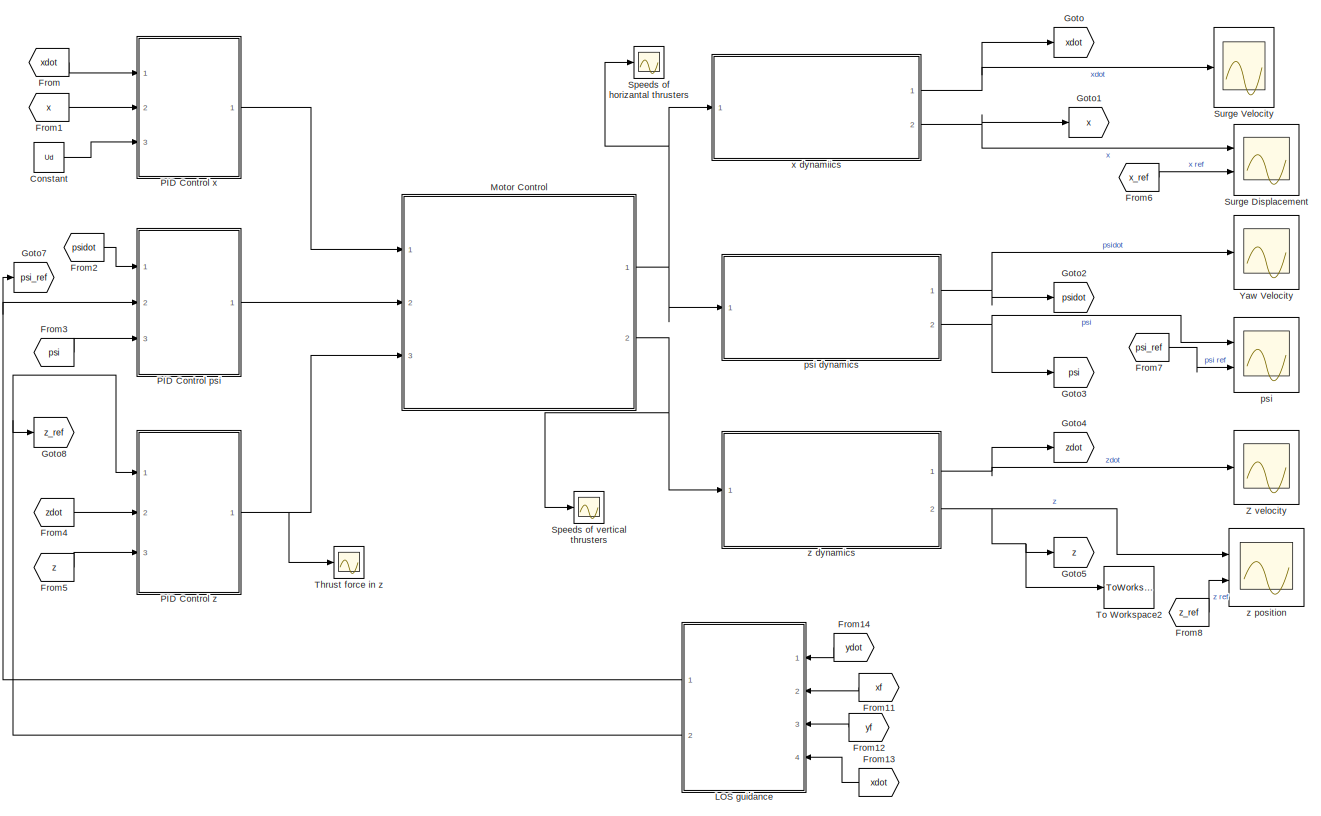
[diagram: root canvas - part 1/2, center side, full height]
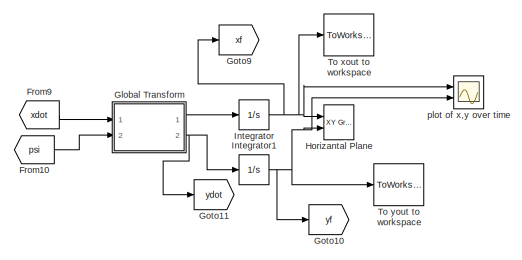
[diagram: root canvas - part 2/2, top right region]
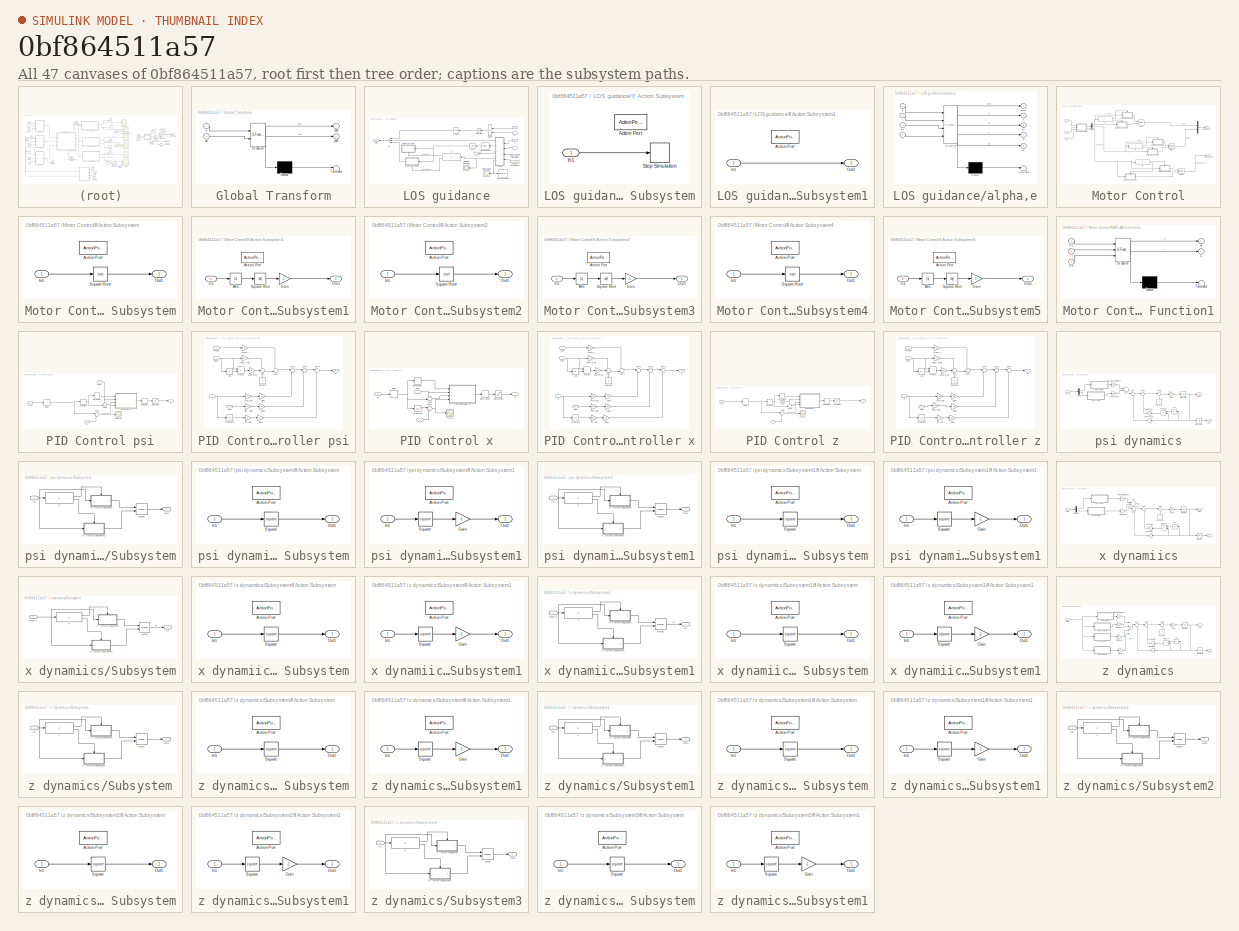
[diagram: thumbnail index - all 47 canvases of the model, root first then tree order]
MODEL slx_0bf864511a57
KIND model
CONFIG AbsTol = auto
CONFIG EnableMultiTasking = off
CONFIG FixedStep = auto
CONFIG MaxStep = auto
CONFIG MinStep = auto
CONFIG RelTol = 1e-3
CONFIG SampleTimeConstraint = Unconstrained
CONFIG Solver = VariableStepAuto
CONFIG SolverName = VariableStepAuto
CONFIG StartTime = 0.0
CONFIG StopTime = 12
BLOCK [Constant] Constant
  Value = Ud
BLOCK [From] From
  GotoTag = xdot
BLOCK [From] From1
  GotoTag = x
BLOCK [From] From10
  GotoTag = psi
BLOCK [From] From11
  GotoTag = xf
BLOCK [From] From12
  GotoTag = yf
BLOCK [From] From13
  GotoTag = xdot
BLOCK [From] From14
  GotoTag = ydot
BLOCK [From] From2
  GotoTag = psidot
BLOCK [From] From3
  GotoTag = psi
BLOCK [From] From4
  GotoTag = zdot
BLOCK [From] From5
  GotoTag = z
BLOCK [From] From6
  GotoTag = x_ref
BLOCK [From] From7
  GotoTag = psi_ref
BLOCK [From] From8
  GotoTag = z_ref
BLOCK [From] From9
  GotoTag = xdot
BLOCK [SubSystem] Global Transform
  ErrorFcn = Stateflow.Translate.translate
  PermitHierarchicalResolution = ExplicitOnly
  Ports = [2, 2]
  RequestExecContextInheritance = off
  SFBlockType = MATLAB Function
  TreatAsAtomicUnit = on
BLOCK [Demux] Global Transform/ Demux 
  Outputs = 1
  Ports = [1, 1]
BLOCK [S-Function] Global Transform/ SFunction 
  EnableBusSupport = on
  FunctionName = sf_sfun
  PortCounts = [2 3]
  Ports = [2, 3]
  SFcnIsStateOwnerBlock = off
  SFunctionDeploymentMode = off
  Tag = Stateflow S-Function 2
BLOCK [Terminator] Global Transform/ Terminator 
BLOCK [Inport] Global Transform/psi
  IconDisplay = Port number
  Port = 2
BLOCK [Inport] Global Transform/u
  IconDisplay = Port number
BLOCK [Outport] Global Transform/xdot
  IconDisplay = Port number
BLOCK [Outport] Global Transform/ydot
  IconDisplay = Port number
  Port = 2
BLOCK [Goto] Goto
  GotoTag = xdot
BLOCK [Goto] Goto1
  GotoTag = x
BLOCK [Goto] Goto10
  GotoTag = yf
BLOCK [Goto] Goto11
  GotoTag = ydot
BLOCK [Goto] Goto2
  GotoTag = psidot
BLOCK [Goto] Goto3
  GotoTag = psi
BLOCK [Goto] Goto4
  GotoTag = zdot
BLOCK [Goto] Goto5
  GotoTag = z
BLOCK [Goto] Goto7
  GotoTag = psi_ref
BLOCK [Goto] Goto8
  GotoTag = z_ref
BLOCK [Goto] Goto9
  GotoTag = xf
BLOCK [Reference] Horizantal Plane  REF=simulink/Sinks/XY Graph
  Ports = [2]
  SourceBlock = simulink/Sinks/XY Graph
  SourceProductBaseCode = SL
  SourceProductName = Simulink
  SourceType = XY scope.
BLOCK [Integrator] Integrator
  Ports = [1, 1]
BLOCK [Integrator] Integrator1
  Ports = [1, 1]
BLOCK [SubSystem] LOS guidance
  Ports = [4, 2]
  RequestExecContextInheritance = off
BLOCK [Product] LOS guidance/Divide
  InputSameDT = off
  Inputs = */
  OutDataTypeStr = Inherit: Inherit via internal rule
  Ports = [2, 1]
  RndMeth = Floor
  SaturateOnIntegerOverflow = off
BLOCK [If] LOS guidance/If
  IfExpression = u1 == 0
  Ports = [1, 2]
BLOCK [SubSystem] LOS guidance/If Action Subsystem
  Ports = [1, 0, 0, 0, 0, 0, 0, 1]
  RequestExecContextInheritance = off
  TreatAsAtomicUnit = on
BLOCK [ActionPort] LOS guidance/If Action Subsystem/Action Port
  ActionPortLabel = if(u1 == 0)
BLOCK [Inport] LOS guidance/If Action Subsystem/In1
  IconDisplay = Port number
BLOCK [Stop] LOS guidance/If Action Subsystem/Stop Simulation
BLOCK [SubSystem] LOS guidance/If Action Subsystem1
  Ports = [1, 1, 0, 0, 0, 0, 0, 1]
  RequestExecContextInheritance = off
  TreatAsAtomicUnit = on
BLOCK [ActionPort] LOS guidance/If Action Subsystem1/Action Port
  ActionPortLabel = else
BLOCK [Inport] LOS guidance/If Action Subsystem1/In1
  IconDisplay = Port number
BLOCK [Outport] LOS guidance/If Action Subsystem1/Out1
  IconDisplay = Port number
BLOCK [Saturate] LOS guidance/Saturation
  InputPortMap = u0
  LowerLimit = -1
  Ports = [1, 1]
  UpperLimit = 1
BLOCK [ToWorkspace] LOS guidance/To Workspace
  MaxDataPoints = inf
  Ports = [1]
  SampleTime = -1
  Save2DSignal = 2-D array (concatenate along first dimension)
  VariableName = eout
BLOCK [Inport] LOS guidance/U
  IconDisplay = Port number
  Port = 4
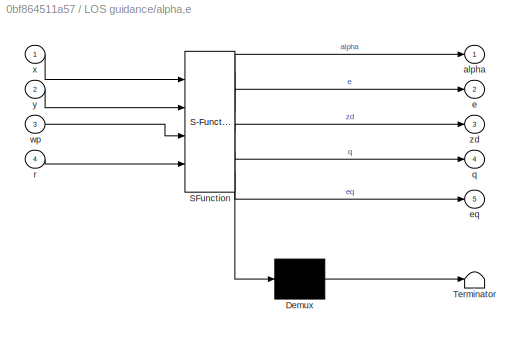
BLOCK [SubSystem] LOS guidance/alpha,e
  ErrorFcn = Stateflow.Translate.translate
  PermitHierarchicalResolution = ExplicitOnly
  Ports = [4, 5]
  RequestExecContextInheritance = off
  SFBlockType = MATLAB Function
  TreatAsAtomicUnit = on
BLOCK [Demux] LOS guidance/alpha,e/ Demux 
  Outputs = 1
  Ports = [1, 1]
BLOCK [S-Function] LOS guidance/alpha,e/ SFunction 
  EnableBusSupport = on
  FunctionName = sf_sfun
  PortCounts = [4 6]
  Ports = [4, 6]
  SFcnIsStateOwnerBlock = off
  SFunctionDeploymentMode = off
  Tag = Stateflow S-Function 3
BLOCK [Terminator] LOS guidance/alpha,e/ Terminator 
BLOCK [Outport] LOS guidance/alpha,e/alpha
  IconDisplay = Port number
  VectorParamsAs1DForOutWhenUnconnected = off
BLOCK [Outport] LOS guidance/alpha,e/e
  IconDisplay = Port number
  Port = 2
  VectorParamsAs1DForOutWhenUnconnected = off
BLOCK [Outport] LOS guidance/alpha,e/eq
  IconDisplay = Port number
  Port = 5
BLOCK [Outport] LOS guidance/alpha,e/q
  IconDisplay = Port number
  Port = 4
BLOCK [Inport] LOS guidance/alpha,e/r
  IconDisplay = Port number
  Port = 4
BLOCK [Inport] LOS guidance/alpha,e/wp
  IconDisplay = Port number
  Port = 3
BLOCK [Inport] LOS guidance/alpha,e/x
  IconDisplay = Port number
BLOCK [Inport] LOS guidance/alpha,e/y
  IconDisplay = Port number
  Port = 2
BLOCK [Outport] LOS guidance/alpha,e/zd
  IconDisplay = Port number
  Port = 3
  VectorParamsAs1DForOutWhenUnconnected = off
BLOCK [Trigonometry] LOS guidance/beta
  Operator = asin
  Ports = [1, 1]
BLOCK [Trigonometry] LOS guidance/chi_r
  Operator = atan
  Ports = [1, 1]
BLOCK [Scope] LOS guidance/distance to wp
  Floating = off
  NumInputPorts = 1
  Ports = [1]
  ScopeSpecificationString = Simulink.scopes.TimeScopeBlockCfg('CurrentConfiguration', extmgr.ConfigurationSet(extmgr.Configuration('Core','General UI',true,'FigureColor',[0.941176470588235 0.941176470588235 0.941176470588235]),extmgr.Configuration('Core','Source UI',true),extmgr.Configuration('Sources','WiredSimulink',true,'DataLoggingVariableName','ScopeData3'),extmgr.Configuration('Visuals','Time Domain',true,'SerializedDi...<+1685ch>
BLOCK [Sum] LOS guidance/psi
  InputSameDT = off
  Inputs = -++
  OutDataTypeStr = Inherit: Inherit via internal rule
  Ports = [3, 1]
  SaturateOnIntegerOverflow = off
BLOCK [Outport] LOS guidance/psid
  IconDisplay = Port number
  VectorParamsAs1DForOutWhenUnconnected = off
BLOCK [Constant] LOS guidance/radius of acceptance
  Value = r
BLOCK [Scope] LOS guidance/simulation stoppage
  Floating = off
  NumInputPorts = 1
  Ports = [1]
  ScopeSpecificationString = Simulink.scopes.TimeScopeBlockCfg('CurrentConfiguration', extmgr.ConfigurationSet(extmgr.Configuration('Core','General UI',true),extmgr.Configuration('Core','Source UI',true),extmgr.Configuration('Sources','WiredSimulink',true,'DataLoggingVariableName','ScopeData2'),extmgr.Configuration('Visuals','Time Domain',true,'SerializedDisplays',{struct('MinYLimReal','-0.125','MaxYLimReal','1.125','YLabelRe...<+1356ch>
BLOCK [Reference] LOS guidance/steering control  REF=simulink/Continuous/PID Controller
  Ports = [1, 1]
  SourceBlock = simulink/Continuous/PID Controller
  SourceProductBaseCode = SL
  SourceProductName = Simulink
  SourceType = PID 1dof
BLOCK [Inport] LOS guidance/v_r
  IconDisplay = Port number
BLOCK [Constant] LOS guidance/waypoints
  Value = waypoints
BLOCK [Inport] LOS guidance/x
  IconDisplay = Port number
  Port = 2
BLOCK [Inport] LOS guidance/y
  IconDisplay = Port number
  Port = 3
BLOCK [Outport] LOS guidance/zd
  IconDisplay = Port number
  Port = 2
  VectorParamsAs1DForOutWhenUnconnected = off
BLOCK [SubSystem] Motor Control
  Ports = [3, 2]
  RequestExecContextInheritance = off
BLOCK [Demux] Motor Control/Demux
  DisplayOption = bar
  Outputs = 2
  Ports = [1, 2]
BLOCK [Inport] Motor Control/Fx
  IconDisplay = Port number
BLOCK [Inport] Motor Control/Fz
  IconDisplay = Port number
  Port = 3
BLOCK [If] Motor Control/If
  IfExpression = u1 >= 0
  Ports = [1, 2]
BLOCK [SubSystem] Motor Control/If Action Subsystem
  Ports = [1, 1, 0, 0, 0, 0, 0, 1]
  RequestExecContextInheritance = off
  TreatAsAtomicUnit = on
BLOCK [ActionPort] Motor Control/If Action Subsystem/Action Port
  ActionPortLabel = if(u1 >= 0)
BLOCK [Inport] Motor Control/If Action Subsystem/In1
  IconDisplay = Port number
BLOCK [Outport] Motor Control/If Action Subsystem/Out1
  IconDisplay = Port number
BLOCK [Sqrt] Motor Control/If Action Subsystem/Square Root
BLOCK [SubSystem] Motor Control/If Action Subsystem1
  Ports = [1, 1, 0, 0, 0, 0, 0, 1]
  RequestExecContextInheritance = off
  TreatAsAtomicUnit = on
BLOCK [Abs] Motor Control/If Action Subsystem1/Abs
  SaturateOnIntegerOverflow = off
BLOCK [ActionPort] Motor Control/If Action Subsystem1/Action Port
  ActionPortLabel = else
BLOCK [Gain] Motor Control/If Action Subsystem1/Gain
  Gain = -1
  OutDataTypeStr = Inherit: Inherit via internal rule
  ParamDataTypeStr = Inherit: Inherit via internal rule
  SaturateOnIntegerOverflow = off
BLOCK [Inport] Motor Control/If Action Subsystem1/In1
  IconDisplay = Port number
BLOCK [Outport] Motor Control/If Action Subsystem1/Out1
  IconDisplay = Port number
BLOCK [Sqrt] Motor Control/If Action Subsystem1/Square Root
BLOCK [SubSystem] Motor Control/If Action Subsystem2
  Ports = [1, 1, 0, 0, 0, 0, 0, 1]
  RequestExecContextInheritance = off
  TreatAsAtomicUnit = on
BLOCK [ActionPort] Motor Control/If Action Subsystem2/Action Port
  ActionPortLabel = if(u1 >= 0)
BLOCK [Inport] Motor Control/If Action Subsystem2/In1
  IconDisplay = Port number
BLOCK [Outport] Motor Control/If Action Subsystem2/Out1
  IconDisplay = Port number
BLOCK [Sqrt] Motor Control/If Action Subsystem2/Square Root
BLOCK [SubSystem] Motor Control/If Action Subsystem3
  Ports = [1, 1, 0, 0, 0, 0, 0, 1]
  RequestExecContextInheritance = off
  TreatAsAtomicUnit = on
BLOCK [Abs] Motor Control/If Action Subsystem3/Abs
  SaturateOnIntegerOverflow = off
BLOCK [ActionPort] Motor Control/If Action Subsystem3/Action Port
  ActionPortLabel = else
BLOCK [Gain] Motor Control/If Action Subsystem3/Gain
  Gain = -1
  OutDataTypeStr = Inherit: Inherit via internal rule
  ParamDataTypeStr = Inherit: Inherit via internal rule
  SaturateOnIntegerOverflow = off
BLOCK [Inport] Motor Control/If Action Subsystem3/In1
  IconDisplay = Port number
BLOCK [Outport] Motor Control/If Action Subsystem3/Out1
  IconDisplay = Port number
BLOCK [Sqrt] Motor Control/If Action Subsystem3/Square Root
BLOCK [SubSystem] Motor Control/If Action Subsystem4
  Ports = [1, 1, 0, 0, 0, 0, 0, 1]
  RequestExecContextInheritance = off
  TreatAsAtomicUnit = on
BLOCK [ActionPort] Motor Control/If Action Subsystem4/Action Port
  ActionPortLabel = if(u1 >= 0)
BLOCK [Inport] Motor Control/If Action Subsystem4/In1
  IconDisplay = Port number
BLOCK [Outport] Motor Control/If Action Subsystem4/Out1
  IconDisplay = Port number
BLOCK [Sqrt] Motor Control/If Action Subsystem4/Square Root
BLOCK [SubSystem] Motor Control/If Action Subsystem5
  Ports = [1, 1, 0, 0, 0, 0, 0, 1]
  RequestExecContextInheritance = off
  TreatAsAtomicUnit = on
BLOCK [Abs] Motor Control/If Action Subsystem5/Abs
  SaturateOnIntegerOverflow = off
BLOCK [ActionPort] Motor Control/If Action Subsystem5/Action Port
  ActionPortLabel = else
BLOCK [Gain] Motor Control/If Action Subsystem5/Gain
  Gain = -1
  OutDataTypeStr = Inherit: Inherit via internal rule
  ParamDataTypeStr = Inherit: Inherit via internal rule
  SaturateOnIntegerOverflow = off
BLOCK [Inport] Motor Control/If Action Subsystem5/In1
  IconDisplay = Port number
BLOCK [Outport] Motor Control/If Action Subsystem5/Out1
  IconDisplay = Port number
BLOCK [Sqrt] Motor Control/If Action Subsystem5/Square Root
BLOCK [If] Motor Control/If1
  IfExpression = u1 >= 0
  Ports = [1, 2]
BLOCK [If] Motor Control/If2
  IfExpression = u1 >= 0
  Ports = [1, 2]
BLOCK [SubSystem] Motor Control/MATLAB Function1
  ErrorFcn = Stateflow.Translate.translate
  PermitHierarchicalResolution = ExplicitOnly
  Ports = [3, 2]
  RequestExecContextInheritance = off
  SFBlockType = MATLAB Function
  TreatAsAtomicUnit = on
BLOCK [Demux] Motor Control/MATLAB Function1/ Demux 
  Outputs = 1
  Ports = [1, 1]
BLOCK [S-Function] Motor Control/MATLAB Function1/ SFunction 
  EnableBusSupport = on
  FunctionName = sf_sfun
  PortCounts = [3 3]
  Ports = [3, 3]
  SFcnIsStateOwnerBlock = off
  SFunctionDeploymentMode = off
  Tag = Stateflow S-Function 1
BLOCK [Terminator] Motor Control/MATLAB Function1/ Terminator 
BLOCK [Outport] Motor Control/MATLAB Function1/C
  IconDisplay = Port number
  Port = 2
BLOCK [Inport] Motor Control/MATLAB Function1/Fx
  IconDisplay = Port number
BLOCK [Inport] Motor Control/MATLAB Function1/Fz
  IconDisplay = Port number
  Port = 3
BLOCK [Inport] Motor Control/MATLAB Function1/Tr
  IconDisplay = Port number
  Port = 2
BLOCK [Outport] Motor Control/MATLAB Function1/w
  IconDisplay = Port number
BLOCK [Merge] Motor Control/Merge
  Ports = [2, 1]
BLOCK [Merge] Motor Control/Merge1
  Ports = [2, 1]
BLOCK [Merge] Motor Control/Merge2
  Ports = [2, 1]
BLOCK [Outport] Motor Control/Motor Speeds
  IconDisplay = Port number
BLOCK [Mux] Motor Control/Mux
  DisplayOption = bar
  Inputs = 2
  Ports = [2, 1]
BLOCK [Inport] Motor Control/Tr
  IconDisplay = Port number
  Port = 2
BLOCK [Outport] Motor Control/VMotor Speed
  IconDisplay = Port number
  Port = 2
BLOCK [SubSystem] PID Control psi
  Ports = [3, 1]
  RequestExecContextInheritance = off
BLOCK [Delay] PID Control psi/Delay
  InputPortMap = u0
  Ports = [1, 1]
BLOCK [Derivative] PID Control psi/Derivative2
BLOCK [Derivative] PID Control psi/Derivative3
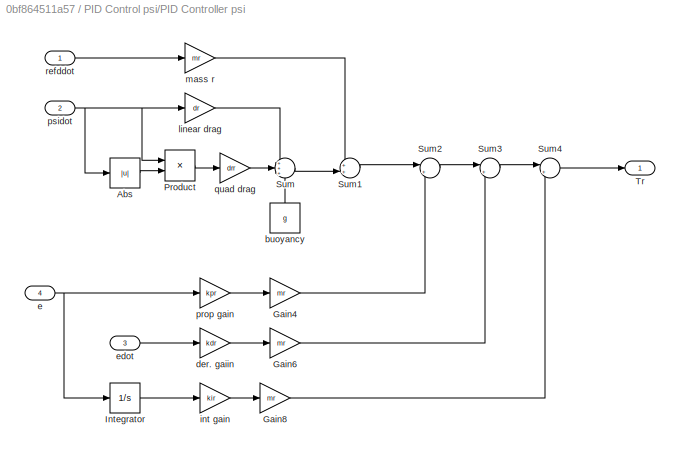
BLOCK [SubSystem] PID Control psi/PID Controller psi
  Ports = [4, 1]
  RequestExecContextInheritance = off
BLOCK [Abs] PID Control psi/PID Controller psi/Abs
  SaturateOnIntegerOverflow = off
BLOCK [Gain] PID Control psi/PID Controller psi/Gain4
  Gain = mr
  OutDataTypeStr = Inherit: Inherit via internal rule
  ParamDataTypeStr = Inherit: Inherit via internal rule
  SaturateOnIntegerOverflow = off
BLOCK [Gain] PID Control psi/PID Controller psi/Gain6
  Gain = mr
  OutDataTypeStr = Inherit: Inherit via internal rule
  ParamDataTypeStr = Inherit: Inherit via internal rule
  SaturateOnIntegerOverflow = off
BLOCK [Gain] PID Control psi/PID Controller psi/Gain8
  Gain = mr
  OutDataTypeStr = Inherit: Inherit via internal rule
  ParamDataTypeStr = Inherit: Inherit via internal rule
  SaturateOnIntegerOverflow = off
BLOCK [Integrator] PID Control psi/PID Controller psi/Integrator
  Ports = [1, 1]
BLOCK [Product] PID Control psi/PID Controller psi/Product
  InputSameDT = off
  OutDataTypeStr = Inherit: Inherit via internal rule
  Ports = [2, 1]
  RndMeth = Floor
  SaturateOnIntegerOverflow = off
BLOCK [Sum] PID Control psi/PID Controller psi/Sum
  IconShape = round
  InputSameDT = off
  Inputs = +++
  OutDataTypeStr = Inherit: Inherit via internal rule
  Ports = [3, 1]
  SaturateOnIntegerOverflow = off
BLOCK [Sum] PID Control psi/PID Controller psi/Sum1
  IconShape = round
  InputSameDT = off
  Inputs = ++|
  OutDataTypeStr = Inherit: Inherit via internal rule
  Ports = [2, 1]
  SaturateOnIntegerOverflow = off
BLOCK [Sum] PID Control psi/PID Controller psi/Sum2
  IconShape = round
  InputSameDT = off
  Inputs = |+-
  OutDataTypeStr = Inherit: Inherit via internal rule
  Ports = [2, 1]
  SaturateOnIntegerOverflow = off
BLOCK [Sum] PID Control psi/PID Controller psi/Sum3
  IconShape = round
  InputSameDT = off
  Inputs = |+-
  OutDataTypeStr = Inherit: Inherit via internal rule
  Ports = [2, 1]
  SaturateOnIntegerOverflow = off
BLOCK [Sum] PID Control psi/PID Controller psi/Sum4
  IconShape = round
  InputSameDT = off
  Inputs = |+-
  OutDataTypeStr = Inherit: Inherit via internal rule
  Ports = [2, 1]
  SaturateOnIntegerOverflow = off
BLOCK [Outport] PID Control psi/PID Controller psi/Tr
  IconDisplay = Port number
BLOCK [Constant] PID Control psi/PID Controller psi/buoyancy
  Value = g
BLOCK [Gain] PID Control psi/PID Controller psi/der. gaiin
  Gain = kdr
  OutDataTypeStr = Inherit: Inherit via internal rule
  ParamDataTypeStr = Inherit: Inherit via internal rule
  SaturateOnIntegerOverflow = off
BLOCK [Inport] PID Control psi/PID Controller psi/e
  IconDisplay = Port number
  Port = 4
BLOCK [Inport] PID Control psi/PID Controller psi/edot
  IconDisplay = Port number
  Port = 3
BLOCK [Gain] PID Control psi/PID Controller psi/int gain
  Gain = kir
  OutDataTypeStr = Inherit: Inherit via internal rule
  ParamDataTypeStr = Inherit: Inherit via internal rule
  SaturateOnIntegerOverflow = off
BLOCK [Gain] PID Control psi/PID Controller psi/linear drag
  Gain = dr
  OutDataTypeStr = Inherit: Inherit via internal rule
  ParamDataTypeStr = Inherit: Inherit via internal rule
  SaturateOnIntegerOverflow = off
BLOCK [Gain] PID Control psi/PID Controller psi/mass r
  Gain = mr
  OutDataTypeStr = Inherit: Inherit via internal rule
  ParamDataTypeStr = Inherit: Inherit via internal rule
  SaturateOnIntegerOverflow = off
BLOCK [Gain] PID Control psi/PID Controller psi/prop gain
  Gain = kpr
  OutDataTypeStr = Inherit: Inherit via internal rule
  ParamDataTypeStr = Inherit: Inherit via internal rule
  SaturateOnIntegerOverflow = off
BLOCK [Inport] PID Control psi/PID Controller psi/psidot
  IconDisplay = Port number
  Port = 2
BLOCK [Gain] PID Control psi/PID Controller psi/quad drag
  Gain = drr
  OutDataTypeStr = Inherit: Inherit via internal rule
  ParamDataTypeStr = Inherit: Inherit via internal rule
  SaturateOnIntegerOverflow = off
BLOCK [Inport] PID Control psi/PID Controller psi/refddot
  IconDisplay = Port number
BLOCK [RateLimiter] PID Control psi/Rate Limiter1
  FallingSlewLimit = -100
  RisingSlewLimit = 100
  SampleTimeMode = inherited
BLOCK [Saturate] PID Control psi/Saturation1
  InputPortMap = u0
  LowerLimit = -100
  Ports = [1, 1]
  UpperLimit = 100
BLOCK [Sum] PID Control psi/Sum2
  IconShape = round
  InputSameDT = off
  Inputs = +-|
  OutDataTypeStr = Inherit: Inherit via internal rule
  Ports = [2, 1]
  SaturateOnIntegerOverflow = off
BLOCK [Sum] PID Control psi/Sum3
  IconShape = round
  InputSameDT = off
  Inputs = |-+
  OutDataTypeStr = Inherit: Inherit via internal rule
  Ports = [2, 1]
  SaturateOnIntegerOverflow = off
BLOCK [Outport] PID Control psi/Tr
  IconDisplay = Port number
BLOCK [Inport] PID Control psi/psi
  IconDisplay = Port number
  Port = 3
BLOCK [Scope] PID Control psi/psi error
  Floating = off
  NumInputPorts = 1
  Ports = [1]
  ScopeSpecificationString = Simulink.scopes.TimeScopeBlockCfg('CurrentConfiguration', extmgr.ConfigurationSet(extmgr.Configuration('Core','General UI',true),extmgr.Configuration('Core','Source UI',true),extmgr.Configuration('Sources','WiredSimulink',true,'DataLoggingVariableName','ScopeData1'),extmgr.Configuration('Visuals','Time Domain',true,'SerializedDisplays',{struct('MinYLimReal','-6.06688','MaxYLimReal','5.3617','YLabe...<+1361ch>
BLOCK [Inport] PID Control psi/psi ref
  IconDisplay = Port number
  Port = 2
BLOCK [Inport] PID Control psi/psidot
  IconDisplay = Port number
BLOCK [SubSystem] PID Control x
  Ports = [3, 1]
  RequestExecContextInheritance = off
BLOCK [Delay] PID Control x/Delay
  InputPortMap = u0
  Ports = [1, 1]
BLOCK [Derivative] PID Control x/Derivative1
BLOCK [Outport] PID Control x/Fx
  IconDisplay = Port number
BLOCK [Integrator] PID Control x/Integrator
  Ports = [1, 1]
BLOCK [SubSystem] PID Control x/PID Controller x
  Ports = [4, 1]
  RequestExecContextInheritance = off
BLOCK [Abs] PID Control x/PID Controller x/Abs
  SaturateOnIntegerOverflow = off
BLOCK [Gain] PID Control x/PID Controller x/Gain4
  Gain = mx
  OutDataTypeStr = Inherit: Inherit via internal rule
  ParamDataTypeStr = Inherit: Inherit via internal rule
  SaturateOnIntegerOverflow = off
BLOCK [Gain] PID Control x/PID Controller x/Gain6
  Gain = mx
  OutDataTypeStr = Inherit: Inherit via internal rule
  ParamDataTypeStr = Inherit: Inherit via internal rule
  SaturateOnIntegerOverflow = off
BLOCK [Gain] PID Control x/PID Controller x/Gain8
  Gain = mx
  OutDataTypeStr = Inherit: Inherit via internal rule
  ParamDataTypeStr = Inherit: Inherit via internal rule
  SaturateOnIntegerOverflow = off
BLOCK [Integrator] PID Control x/PID Controller x/Integrator
  Ports = [1, 1]
BLOCK [Product] PID Control x/PID Controller x/Product
  InputSameDT = off
  OutDataTypeStr = Inherit: Inherit via internal rule
  Ports = [2, 1]
  RndMeth = Floor
  SaturateOnIntegerOverflow = off
BLOCK [Sum] PID Control x/PID Controller x/Sum
  IconShape = round
  InputSameDT = off
  Inputs = +++
  OutDataTypeStr = Inherit: Inherit via internal rule
  Ports = [3, 1]
  SaturateOnIntegerOverflow = off
BLOCK [Sum] PID Control x/PID Controller x/Sum1
  IconShape = round
  InputSameDT = off
  Inputs = ++|
  OutDataTypeStr = Inherit: Inherit via internal rule
  Ports = [2, 1]
  SaturateOnIntegerOverflow = off
BLOCK [Sum] PID Control x/PID Controller x/Sum2
  IconShape = round
  InputSameDT = off
  Inputs = |+-
  OutDataTypeStr = Inherit: Inherit via internal rule
  Ports = [2, 1]
  SaturateOnIntegerOverflow = off
BLOCK [Sum] PID Control x/PID Controller x/Sum3
  IconShape = round
  InputSameDT = off
  Inputs = |+-
  OutDataTypeStr = Inherit: Inherit via internal rule
  Ports = [2, 1]
  SaturateOnIntegerOverflow = off
BLOCK [Sum] PID Control x/PID Controller x/Sum4
  IconShape = round
  InputSameDT = off
  Inputs = |+-
  OutDataTypeStr = Inherit: Inherit via internal rule
  Ports = [2, 1]
  SaturateOnIntegerOverflow = off
BLOCK [Outport] PID Control x/PID Controller x/T
  IconDisplay = Port number
BLOCK [Constant] PID Control x/PID Controller x/buoyancy
  Value = g
BLOCK [Gain] PID Control x/PID Controller x/deriv gain
  Gain = kdx
  OutDataTypeStr = Inherit: Inherit via internal rule
  ParamDataTypeStr = Inherit: Inherit via internal rule
  SaturateOnIntegerOverflow = off
BLOCK [Inport] PID Control x/PID Controller x/e
  IconDisplay = Port number
  Port = 4
BLOCK [Inport] PID Control x/PID Controller x/edot
  IconDisplay = Port number
  Port = 3
BLOCK [Gain] PID Control x/PID Controller x/int gain
  Gain = kix
  OutDataTypeStr = Inherit: Inherit via internal rule
  ParamDataTypeStr = Inherit: Inherit via internal rule
  SaturateOnIntegerOverflow = off
BLOCK [Gain] PID Control x/PID Controller x/linear drag
  Gain = dx
  OutDataTypeStr = Inherit: Inherit via internal rule
  ParamDataTypeStr = Inherit: Inherit via internal rule
  SaturateOnIntegerOverflow = off
BLOCK [Gain] PID Control x/PID Controller x/mass x
  Gain = mx
  OutDataTypeStr = Inherit: Inherit via internal rule
  ParamDataTypeStr = Inherit: Inherit via internal rule
  SaturateOnIntegerOverflow = off
BLOCK [Gain] PID Control x/PID Controller x/prop gain
  Gain = kpx
  OutDataTypeStr = Inherit: Inherit via internal rule
  ParamDataTypeStr = Inherit: Inherit via internal rule
  SaturateOnIntegerOverflow = off
BLOCK [Gain] PID Control x/PID Controller x/quad drag
  Gain = dxx
  OutDataTypeStr = Inherit: Inherit via internal rule
  ParamDataTypeStr = Inherit: Inherit via internal rule
  SaturateOnIntegerOverflow = off
BLOCK [Inport] PID Control x/PID Controller x/rddot
  IconDisplay = Port number
BLOCK [Inport] PID Control x/PID Controller x/xdot
  IconDisplay = Port number
  Port = 2
BLOCK [RateLimiter] PID Control x/Rate Limiter
  FallingSlewLimit = -100
  RisingSlewLimit = 100
  SampleTimeMode = inherited
BLOCK [Saturate] PID Control x/Saturation
  InputPortMap = u0
  LowerLimit = -100
  Ports = [1, 1]
  UpperLimit = 100
BLOCK [Sum] PID Control x/Sum
  IconShape = round
  InputSameDT = off
  Inputs = +-|
  OutDataTypeStr = Inherit: Inherit via internal rule
  Ports = [2, 1]
  SaturateOnIntegerOverflow = off
BLOCK [Sum] PID Control x/Sum1
  IconShape = round
  InputSameDT = off
  Inputs = |-+
  OutDataTypeStr = Inherit: Inherit via internal rule
  Ports = [2, 1]
  SaturateOnIntegerOverflow = off
BLOCK [Inport] PID Control x/Ud
  IconDisplay = Port number
  Port = 3
BLOCK [Inport] PID Control x/x
  IconDisplay = Port number
  Port = 2
BLOCK [Scope] PID Control x/x error
  Floating = off
  NumInputPorts = 1
  Ports = [1]
  ScopeSpecificationString = Simulink.scopes.TimeScopeBlockCfg('CurrentConfiguration', extmgr.ConfigurationSet(extmgr.Configuration('Core','General UI',true),extmgr.Configuration('Core','Source UI',true),extmgr.Configuration('Sources','WiredSimulink',true),extmgr.Configuration('Visuals','Time Domain',true,'SerializedDisplays',{struct('MinYLimReal','-7.32362','MaxYLimReal','12.32067','YLabelReal','','MinYLimMag','0.00000','Max...<+1328ch>
BLOCK [Inport] PID Control x/xdot
  IconDisplay = Port number
BLOCK [SubSystem] PID Control z
  Ports = [3, 1]
  RequestExecContextInheritance = off
BLOCK [Delay] PID Control z/Delay
  InputPortMap = u0
  Ports = [1, 1]
BLOCK [Derivative] PID Control z/Derivative4
BLOCK [Derivative] PID Control z/Derivative5
BLOCK [Outport] PID Control z/Fz
  IconDisplay = Port number
BLOCK [SubSystem] PID Control z/PID Controller z
  Ports = [4, 1]
  RequestExecContextInheritance = off
BLOCK [Abs] PID Control z/PID Controller z/Abs
  SaturateOnIntegerOverflow = off
BLOCK [Outport] PID Control z/PID Controller z/Fz
  IconDisplay = Port number
BLOCK [Gain] PID Control z/PID Controller z/Gain4
  Gain = mz
  OutDataTypeStr = Inherit: Inherit via internal rule
  ParamDataTypeStr = Inherit: Inherit via internal rule
  SaturateOnIntegerOverflow = off
BLOCK [Gain] PID Control z/PID Controller z/Gain6
  Gain = mz
  OutDataTypeStr = Inherit: Inherit via internal rule
  ParamDataTypeStr = Inherit: Inherit via internal rule
  SaturateOnIntegerOverflow = off
BLOCK [Gain] PID Control z/PID Controller z/Gain8
  Gain = mz
  OutDataTypeStr = Inherit: Inherit via internal rule
  ParamDataTypeStr = Inherit: Inherit via internal rule
  SaturateOnIntegerOverflow = off
BLOCK [Integrator] PID Control z/PID Controller z/Integrator
  Ports = [1, 1]
BLOCK [Product] PID Control z/PID Controller z/Product
  InputSameDT = off
  OutDataTypeStr = Inherit: Inherit via internal rule
  Ports = [2, 1]
  RndMeth = Floor
  SaturateOnIntegerOverflow = off
BLOCK [Sum] PID Control z/PID Controller z/Sum
  IconShape = round
  InputSameDT = off
  Inputs = +++
  OutDataTypeStr = Inherit: Inherit via internal rule
  Ports = [3, 1]
  SaturateOnIntegerOverflow = off
BLOCK [Sum] PID Control z/PID Controller z/Sum1
  IconShape = round
  InputSameDT = off
  Inputs = ++|
  OutDataTypeStr = Inherit: Inherit via internal rule
  Ports = [2, 1]
  SaturateOnIntegerOverflow = off
BLOCK [Sum] PID Control z/PID Controller z/Sum2
  IconShape = round
  InputSameDT = off
  Inputs = |+-
  OutDataTypeStr = Inherit: Inherit via internal rule
  Ports = [2, 1]
  SaturateOnIntegerOverflow = off
BLOCK [Sum] PID Control z/PID Controller z/Sum3
  IconShape = round
  InputSameDT = off
  Inputs = |+-
  OutDataTypeStr = Inherit: Inherit via internal rule
  Ports = [2, 1]
  SaturateOnIntegerOverflow = off
BLOCK [Sum] PID Control z/PID Controller z/Sum4
  IconShape = round
  InputSameDT = off
  Inputs = |+-
  OutDataTypeStr = Inherit: Inherit via internal rule
  Ports = [2, 1]
  SaturateOnIntegerOverflow = off
BLOCK [Constant] PID Control z/PID Controller z/buoyancy
  Value = g
BLOCK [Gain] PID Control z/PID Controller z/deriv gain
  Gain = kdz
  OutDataTypeStr = Inherit: Inherit via internal rule
  ParamDataTypeStr = Inherit: Inherit via internal rule
  SaturateOnIntegerOverflow = off
BLOCK [Inport] PID Control z/PID Controller z/e
  IconDisplay = Port number
  Port = 4
BLOCK [Inport] PID Control z/PID Controller z/edot
  IconDisplay = Port number
  Port = 3
BLOCK [Gain] PID Control z/PID Controller z/int gain
  Gain = kiz
  OutDataTypeStr = Inherit: Inherit via internal rule
  ParamDataTypeStr = Inherit: Inherit via internal rule
  SaturateOnIntegerOverflow = off
BLOCK [Gain] PID Control z/PID Controller z/linear drag
  Gain = dz
  OutDataTypeStr = Inherit: Inherit via internal rule
  ParamDataTypeStr = Inherit: Inherit via internal rule
  SaturateOnIntegerOverflow = off
BLOCK [Gain] PID Control z/PID Controller z/mass z
  Gain = mz
  OutDataTypeStr = Inherit: Inherit via internal rule
  ParamDataTypeStr = Inherit: Inherit via internal rule
  SaturateOnIntegerOverflow = off
BLOCK [Gain] PID Control z/PID Controller z/prop gain
  Gain = kpz
  OutDataTypeStr = Inherit: Inherit via internal rule
  ParamDataTypeStr = Inherit: Inherit via internal rule
  SaturateOnIntegerOverflow = off
BLOCK [Gain] PID Control z/PID Controller z/quad drag
  Gain = dzz
  OutDataTypeStr = Inherit: Inherit via internal rule
  ParamDataTypeStr = Inherit: Inherit via internal rule
  SaturateOnIntegerOverflow = off
BLOCK [Inport] PID Control z/PID Controller z/refddot
  IconDisplay = Port number
BLOCK [Inport] PID Control z/PID Controller z/zdot
  IconDisplay = Port number
  Port = 2
BLOCK [RateLimiter] PID Control z/Rate Limiter2
  FallingSlewLimit = -100
  RisingSlewLimit = 100
  SampleTimeMode = inherited
BLOCK [Saturate] PID Control z/Saturation2
  InputPortMap = u0
  LowerLimit = -100
  Ports = [1, 1]
  UpperLimit = 100
BLOCK [Sum] PID Control z/Sum4
  IconShape = round
  InputSameDT = off
  Inputs = +-|
  OutDataTypeStr = Inherit: Inherit via internal rule
  Ports = [2, 1]
  SaturateOnIntegerOverflow = off
BLOCK [Sum] PID Control z/Sum5
  IconShape = round
  InputSameDT = off
  Inputs = |-+
  OutDataTypeStr = Inherit: Inherit via internal rule
  Ports = [2, 1]
  SaturateOnIntegerOverflow = off
BLOCK [Inport] PID Control z/z
  IconDisplay = Port number
  Port = 3
BLOCK [Scope] PID Control z/z error
  Floating = off
  NumInputPorts = 1
  Ports = [1]
  ScopeSpecificationString = Simulink.scopes.TimeScopeBlockCfg('CurrentConfiguration', extmgr.ConfigurationSet(extmgr.Configuration('Core','General UI',true),extmgr.Configuration('Core','Source UI',true),extmgr.Configuration('Sources','WiredSimulink',true,'DataLoggingVariableName','ScopeData4'),extmgr.Configuration('Visuals','Time Domain',true,'SerializedDisplays',{struct('MinYLimReal','-1.14411','MaxYLimReal','0.29697','YLab...<+1363ch>
BLOCK [Inport] PID Control z/z ref
  IconDisplay = Port number
BLOCK [Inport] PID Control z/zdot
  IconDisplay = Port number
  Port = 2
BLOCK [Scope] Speeds of horizantal thrusters
  Floating = off
  NumInputPorts = 1
  Ports = [1]
  ScopeSpecificationString = Simulink.scopes.TimeScopeBlockCfg('CurrentConfiguration', extmgr.ConfigurationSet(extmgr.Configuration('Core','General UI',true),extmgr.Configuration('Core','Source UI',true),extmgr.Configuration('Sources','WiredSimulink',true,'DataLoggingVariableName','ScopeData1'),extmgr.Configuration('Visuals','Time Domain',true,'SerializedDisplays',{struct('MinYLimReal','-293.13088','MaxYLimReal','353.21611','...<+1373ch>
BLOCK [Scope] Speeds of vertical thrusters
  Floating = off
  NumInputPorts = 1
  Ports = [1]
  ScopeSpecificationString = Simulink.scopes.TimeScopeBlockCfg('CurrentConfiguration', extmgr.ConfigurationSet(extmgr.Configuration('Core','General UI',true),extmgr.Configuration('Core','Source UI',true),extmgr.Configuration('Sources','WiredSimulink',true,'DataLoggingVariableName','ScopeData3'),extmgr.Configuration('Visuals','Time Domain',true,'SerializedDisplays',{struct('MinYLimReal','-48.84664','MaxYLimReal','132.88059','Y...<+1403ch>
BLOCK [Scope] Surge Displacement
  Floating = off
  NumInputPorts = 2
  Ports = [2]
  ScopeSpecificationString = Simulink.scopes.TimeScopeBlockCfg('CurrentConfiguration', extmgr.ConfigurationSet(extmgr.Configuration('Core','General UI',true,'FigureColor',[0.941176470588235 0.941176470588235 0.941176470588235]),extmgr.Configuration('Core','Source UI',true),extmgr.Configuration('Sources','WiredSimulink',true,'DataLoggingVariableName','ScopeData3'),extmgr.Configuration('Visuals','Time Domain',true,'SerializedDi...<+1811ch>
BLOCK [Scope] Surge Velocity
  Floating = off
  NumInputPorts = 1
  Ports = [1]
  ScopeSpecificationString = Simulink.scopes.TimeScopeBlockCfg('CurrentConfiguration', extmgr.ConfigurationSet(extmgr.Configuration('Core','General UI',true),extmgr.Configuration('Core','Source UI',true),extmgr.Configuration('Sources','WiredSimulink',true,'DataLoggingVariableName','ScopeData2'),extmgr.Configuration('Visuals','Time Domain',true,'SerializedDisplays',{struct('MinYLimReal','-0.13294','MaxYLimReal','0.67039','YLab...<+1359ch>
BLOCK [Scope] Thrust force in z
  Floating = off
  NumInputPorts = 1
  Ports = [1]
  ScopeSpecificationString = Simulink.scopes.TimeScopeBlockCfg('CurrentConfiguration', extmgr.ConfigurationSet(extmgr.Configuration('Core','General UI',true),extmgr.Configuration('Core','Source UI',true),extmgr.Configuration('Sources','WiredSimulink',true,'DataLoggingVariableName','ScopeData2'),extmgr.Configuration('Visuals','Time Domain',true,'SerializedDisplays',{struct('MinYLimReal','-20.5446','MaxYLimReal','113.39384','YL...<+1380ch>
BLOCK [ToWorkspace] To Workspace2
  MaxDataPoints = inf
  Ports = [1]
  SampleTime = -1
  Save2DSignal = 2-D array (concatenate along first dimension)
  VariableName = zout
BLOCK [ToWorkspace] To xout to workspace
  MaxDataPoints = inf
  Ports = [1]
  SampleTime = -1
  Save2DSignal = 2-D array (concatenate along first dimension)
  VariableName = xout
BLOCK [ToWorkspace] To yout to workspace
  MaxDataPoints = inf
  Ports = [1]
  SampleTime = -1
  Save2DSignal = 2-D array (concatenate along first dimension)
  VariableName = yout
BLOCK [Scope] Yaw Velocity
  Floating = off
  NumInputPorts = 1
  Ports = [1]
  ScopeSpecificationString = Simulink.scopes.TimeScopeBlockCfg('CurrentConfiguration', extmgr.ConfigurationSet(extmgr.Configuration('Core','General UI',true),extmgr.Configuration('Core','Source UI',true),extmgr.Configuration('Sources','WiredSimulink',true,'DataLoggingVariableName','ScopeData5'),extmgr.Configuration('Visuals','Time Domain',true,'SerializedDisplays',{struct('MinYLimReal','-2.47486','MaxYLimReal','2.27372','YLab...<+1365ch>
BLOCK [Scope] Z velocity
  Floating = off
  NumInputPorts = 1
  Ports = [1]
  ScopeSpecificationString = Simulink.scopes.TimeScopeBlockCfg('CurrentConfiguration', extmgr.ConfigurationSet(extmgr.Configuration('Core','General UI',true),extmgr.Configuration('Core','Source UI',true),extmgr.Configuration('Sources','WiredSimulink',true,'DataLoggingVariableName','ScopeData7'),extmgr.Configuration('Visuals','Time Domain',true),extmgr.Configuration('Tools','Plot Navigation',true),extmgr.Configuration('Tools',...<+58ch>
BLOCK [Scope] plot of x,y over time
  Floating = off
  NumInputPorts = 2
  Ports = [2]
  ScopeSpecificationString = Simulink.scopes.TimeScopeBlockCfg('CurrentConfiguration', extmgr.ConfigurationSet(extmgr.Configuration('Core','General UI',true),extmgr.Configuration('Core','Source UI',true),extmgr.Configuration('Sources','WiredSimulink',true,'DataLoggingVariableName','ScopeData1'),extmgr.Configuration('Visuals','Time Domain',true,'SerializedDisplays',{struct('MinYLimReal','-1.00905','MaxYLimReal','0.52584','YLab...<+1381ch>
BLOCK [Scope] psi
  Floating = off
  NumInputPorts = 2
  Ports = [2]
  ScopeSpecificationString = Simulink.scopes.TimeScopeBlockCfg('CurrentConfiguration', extmgr.ConfigurationSet(extmgr.Configuration('Core','General UI',true,'FigureColor',[0.941176470588235 0.941176470588235 0.941176470588235]),extmgr.Configuration('Core','Source UI',true),extmgr.Configuration('Sources','WiredSimulink',true,'DataLoggingVariableName','ScopeData6'),extmgr.Configuration('Visuals','Time Domain',true,'SerializedDi...<+1813ch>
BLOCK [SubSystem] psi dynamics
  Ports = [1, 2]
  RequestExecContextInheritance = off
BLOCK [Abs] psi dynamics/Abs
  SaturateOnIntegerOverflow = off
BLOCK [Sum] psi dynamics/Add
  InputSameDT = off
  OutDataTypeStr = Inherit: Inherit via internal rule
  Ports = [2, 1]
  SaturateOnIntegerOverflow = off
BLOCK [Demux] psi dynamics/Demux
  DisplayOption = bar
  Outputs = 2
  Ports = [1, 2]
BLOCK [Integrator] psi dynamics/Integrator
  Ports = [1, 1]
BLOCK [Integrator] psi dynamics/Integrator1
  Ports = [1, 1]
BLOCK [Gain] psi dynamics/Linear drag
  Gain = dr
  OutDataTypeStr = Inherit: Inherit via internal rule
  ParamDataTypeStr = Inherit: Inherit via internal rule
  SaturateOnIntegerOverflow = off
BLOCK [Product] psi dynamics/Product
  InputSameDT = off
  OutDataTypeStr = Inherit: Inherit via internal rule
  Ports = [2, 1]
  RndMeth = Floor
  SaturateOnIntegerOverflow = off
BLOCK [Inport] psi dynamics/Prop
  IconDisplay = Port number
BLOCK [SubSystem] psi dynamics/Subsystem
  Ports = [1, 1]
  RequestExecContextInheritance = off
BLOCK [If] psi dynamics/Subsystem/If
  IfExpression = u1 >= 0
  Ports = [1, 2]
BLOCK [SubSystem] psi dynamics/Subsystem/If Action Subsystem
  Ports = [1, 1, 0, 0, 0, 0, 0, 1]
  RequestExecContextInheritance = off
  TreatAsAtomicUnit = on
BLOCK [ActionPort] psi dynamics/Subsystem/If Action Subsystem/Action Port
  ActionPortLabel = if(u1 >= 0)
BLOCK [Inport] psi dynamics/Subsystem/If Action Subsystem/In1
  IconDisplay = Port number
BLOCK [Outport] psi dynamics/Subsystem/If Action Subsystem/Out1
  IconDisplay = Port number
BLOCK [Math] psi dynamics/Subsystem/If Action Subsystem/Square
  Operator = square
  Ports = [1, 1]
  SignedPower = off
BLOCK [SubSystem] psi dynamics/Subsystem/If Action Subsystem1
  Ports = [1, 1, 0, 0, 0, 0, 0, 1]
  RequestExecContextInheritance = off
  TreatAsAtomicUnit = on
BLOCK [ActionPort] psi dynamics/Subsystem/If Action Subsystem1/Action Port
  ActionPortLabel = else
BLOCK [Gain] psi dynamics/Subsystem/If Action Subsystem1/Gain
  Gain = -1
  OutDataTypeStr = Inherit: Inherit via internal rule
  ParamDataTypeStr = Inherit: Inherit via internal rule
  SaturateOnIntegerOverflow = off
BLOCK [Inport] psi dynamics/Subsystem/If Action Subsystem1/In1
  IconDisplay = Port number
BLOCK [Outport] psi dynamics/Subsystem/If Action Subsystem1/Out1
  IconDisplay = Port number
BLOCK [Math] psi dynamics/Subsystem/If Action Subsystem1/Square
  Operator = square
  Ports = [1, 1]
  SignedPower = off
BLOCK [Inport] psi dynamics/Subsystem/In1
  IconDisplay = Port number
BLOCK [Merge] psi dynamics/Subsystem/Merge
  Ports = [2, 1]
BLOCK [Outport] psi dynamics/Subsystem/Out1
  IconDisplay = Port number
BLOCK [SubSystem] psi dynamics/Subsystem1
  Ports = [1, 1]
  RequestExecContextInheritance = off
BLOCK [If] psi dynamics/Subsystem1/If
  IfExpression = u1 >= 0
  Ports = [1, 2]
BLOCK [SubSystem] psi dynamics/Subsystem1/If Action Subsystem
  Ports = [1, 1, 0, 0, 0, 0, 0, 1]
  RequestExecContextInheritance = off
  TreatAsAtomicUnit = on
BLOCK [ActionPort] psi dynamics/Subsystem1/If Action Subsystem/Action Port
  ActionPortLabel = if(u1 >= 0)
BLOCK [Inport] psi dynamics/Subsystem1/If Action Subsystem/In1
  IconDisplay = Port number
BLOCK [Outport] psi dynamics/Subsystem1/If Action Subsystem/Out1
  IconDisplay = Port number
BLOCK [Math] psi dynamics/Subsystem1/If Action Subsystem/Square
  Operator = square
  Ports = [1, 1]
  SignedPower = off
BLOCK [SubSystem] psi dynamics/Subsystem1/If Action Subsystem1
  Ports = [1, 1, 0, 0, 0, 0, 0, 1]
  RequestExecContextInheritance = off
  TreatAsAtomicUnit = on
BLOCK [ActionPort] psi dynamics/Subsystem1/If Action Subsystem1/Action Port
  ActionPortLabel = else
BLOCK [Gain] psi dynamics/Subsystem1/If Action Subsystem1/Gain
  Gain = -1
  OutDataTypeStr = Inherit: Inherit via internal rule
  ParamDataTypeStr = Inherit: Inherit via internal rule
  SaturateOnIntegerOverflow = off
BLOCK [Inport] psi dynamics/Subsystem1/If Action Subsystem1/In1
  IconDisplay = Port number
BLOCK [Outport] psi dynamics/Subsystem1/If Action Subsystem1/Out1
  IconDisplay = Port number
BLOCK [Math] psi dynamics/Subsystem1/If Action Subsystem1/Square
  Operator = square
  Ports = [1, 1]
  SignedPower = off
BLOCK [Inport] psi dynamics/Subsystem1/In1
  IconDisplay = Port number
BLOCK [Merge] psi dynamics/Subsystem1/Merge
  Ports = [2, 1]
BLOCK [Outport] psi dynamics/Subsystem1/Out1
  IconDisplay = Port number
BLOCK [Sum] psi dynamics/Sum
  IconShape = round
  InputSameDT = off
  Inputs = |+-
  OutDataTypeStr = Inherit: Inherit via internal rule
  Ports = [2, 1]
  SaturateOnIntegerOverflow = off
BLOCK [Sum] psi dynamics/Sum1
  IconShape = round
  InputSameDT = off
  Inputs = |+-
  OutDataTypeStr = Inherit: Inherit via internal rule
  Ports = [2, 1]
  SaturateOnIntegerOverflow = off
BLOCK [Sum] psi dynamics/Sum2
  IconShape = round
  InputSameDT = off
  Inputs = |+-
  OutDataTypeStr = Inherit: Inherit via internal rule
  Ports = [2, 1]
  SaturateOnIntegerOverflow = off
BLOCK [Gain] psi dynamics/Torque Coeffecient
  Gain = kf*L
  OutDataTypeStr = Inherit: Inherit via internal rule
  ParamDataTypeStr = Inherit: Inherit via internal rule
  SaturateOnIntegerOverflow = off
BLOCK [Gain] psi dynamics/Torque coef
  Gain = -kf*L
  OutDataTypeStr = Inherit: Inherit via internal rule
  ParamDataTypeStr = Inherit: Inherit via internal rule
  SaturateOnIntegerOverflow = off
BLOCK [Constant] psi dynamics/buouancy
  Value = g
BLOCK [Gain] psi dynamics/mass
  Gain = mr
  OutDataTypeStr = Inherit: Inherit via internal rule
  ParamDataTypeStr = Inherit: Inherit via internal rule
  SaturateOnIntegerOverflow = off
BLOCK [Outport] psi dynamics/psi
  IconDisplay = Port number
  Port = 2
BLOCK [Outport] psi dynamics/psidot
  IconDisplay = Port number
BLOCK [Gain] psi dynamics/quad drag
  Gain = drr
  OutDataTypeStr = Inherit: Inherit via internal rule
  ParamDataTypeStr = Inherit: Inherit via internal rule
  SaturateOnIntegerOverflow = off
BLOCK [SubSystem] x dynamiics
  Ports = [1, 2]
  RequestExecContextInheritance = off
BLOCK [Abs] x dynamiics/Abs
  SaturateOnIntegerOverflow = off
BLOCK [Sum] x dynamiics/Add
  InputSameDT = off
  OutDataTypeStr = Inherit: Inherit via internal rule
  Ports = [2, 1]
  SaturateOnIntegerOverflow = off
BLOCK [Demux] x dynamiics/Demux
  DisplayOption = bar
  Outputs = 2
  Ports = [1, 2]
BLOCK [Integrator] x dynamiics/Integrator
  InitialCondition = 0.001
  Ports = [1, 1]
BLOCK [Integrator] x dynamiics/Integrator1
  Ports = [1, 1]
BLOCK [Product] x dynamiics/Product
  InputSameDT = off
  OutDataTypeStr = Inherit: Inherit via internal rule
  Ports = [2, 1]
  RndMeth = Floor
  SaturateOnIntegerOverflow = off
BLOCK [Inport] x dynamiics/Prop
  IconDisplay = Port number
BLOCK [SubSystem] x dynamiics/Subsystem
  Ports = [1, 1]
  RequestExecContextInheritance = off
BLOCK [If] x dynamiics/Subsystem/If
  IfExpression = u1 >= 0
  Ports = [1, 2]
BLOCK [SubSystem] x dynamiics/Subsystem/If Action Subsystem
  Ports = [1, 1, 0, 0, 0, 0, 0, 1]
  RequestExecContextInheritance = off
  TreatAsAtomicUnit = on
BLOCK [ActionPort] x dynamiics/Subsystem/If Action Subsystem/Action Port
  ActionPortLabel = if(u1 >= 0)
BLOCK [Inport] x dynamiics/Subsystem/If Action Subsystem/In1
  IconDisplay = Port number
BLOCK [Outport] x dynamiics/Subsystem/If Action Subsystem/Out1
  IconDisplay = Port number
BLOCK [Math] x dynamiics/Subsystem/If Action Subsystem/Square
  Operator = square
  Ports = [1, 1]
  SignedPower = off
BLOCK [SubSystem] x dynamiics/Subsystem/If Action Subsystem1
  Ports = [1, 1, 0, 0, 0, 0, 0, 1]
  RequestExecContextInheritance = off
  TreatAsAtomicUnit = on
BLOCK [ActionPort] x dynamiics/Subsystem/If Action Subsystem1/Action Port
  ActionPortLabel = else
BLOCK [Gain] x dynamiics/Subsystem/If Action Subsystem1/Gain
  Gain = -1
  OutDataTypeStr = Inherit: Inherit via internal rule
  ParamDataTypeStr = Inherit: Inherit via internal rule
  SaturateOnIntegerOverflow = off
BLOCK [Inport] x dynamiics/Subsystem/If Action Subsystem1/In1
  IconDisplay = Port number
BLOCK [Outport] x dynamiics/Subsystem/If Action Subsystem1/Out1
  IconDisplay = Port number
BLOCK [Math] x dynamiics/Subsystem/If Action Subsystem1/Square
  Operator = square
  Ports = [1, 1]
  SignedPower = off
BLOCK [Merge] x dynamiics/Subsystem/Merge
  Ports = [2, 1]
BLOCK [Inport] x dynamiics/Subsystem/Motor 1
  IconDisplay = Port number
BLOCK [Outport] x dynamiics/Subsystem/w1
  IconDisplay = Port number
BLOCK [SubSystem] x dynamiics/Subsystem1
  Ports = [1, 1]
  RequestExecContextInheritance = off
BLOCK [If] x dynamiics/Subsystem1/If
  IfExpression = u1 >= 0
  Ports = [1, 2]
BLOCK [SubSystem] x dynamiics/Subsystem1/If Action Subsystem
  Ports = [1, 1, 0, 0, 0, 0, 0, 1]
  RequestExecContextInheritance = off
  TreatAsAtomicUnit = on
BLOCK [ActionPort] x dynamiics/Subsystem1/If Action Subsystem/Action Port
  ActionPortLabel = if(u1 >= 0)
BLOCK [Inport] x dynamiics/Subsystem1/If Action Subsystem/In1
  IconDisplay = Port number
BLOCK [Outport] x dynamiics/Subsystem1/If Action Subsystem/Out1
  IconDisplay = Port number
BLOCK [Math] x dynamiics/Subsystem1/If Action Subsystem/Square
  Operator = square
  Ports = [1, 1]
  SignedPower = off
BLOCK [SubSystem] x dynamiics/Subsystem1/If Action Subsystem1
  Ports = [1, 1, 0, 0, 0, 0, 0, 1]
  RequestExecContextInheritance = off
  TreatAsAtomicUnit = on
BLOCK [ActionPort] x dynamiics/Subsystem1/If Action Subsystem1/Action Port
  ActionPortLabel = else
BLOCK [Gain] x dynamiics/Subsystem1/If Action Subsystem1/Gain
  Gain = -1
  OutDataTypeStr = Inherit: Inherit via internal rule
  ParamDataTypeStr = Inherit: Inherit via internal rule
  SaturateOnIntegerOverflow = off
BLOCK [Inport] x dynamiics/Subsystem1/If Action Subsystem1/In1
  IconDisplay = Port number
BLOCK [Outport] x dynamiics/Subsystem1/If Action Subsystem1/Out1
  IconDisplay = Port number
BLOCK [Math] x dynamiics/Subsystem1/If Action Subsystem1/Square
  Operator = square
  Ports = [1, 1]
  SignedPower = off
BLOCK [Merge] x dynamiics/Subsystem1/Merge
  Ports = [2, 1]
BLOCK [Inport] x dynamiics/Subsystem1/Motor 2
  IconDisplay = Port number
BLOCK [Outport] x dynamiics/Subsystem1/w2
  IconDisplay = Port number
BLOCK [Sum] x dynamiics/Sum
  IconShape = round
  InputSameDT = off
  Inputs = |+-
  OutDataTypeStr = Inherit: Inherit via internal rule
  Ports = [2, 1]
  SaturateOnIntegerOverflow = off
BLOCK [Sum] x dynamiics/Sum1
  IconShape = round
  InputSameDT = off
  Inputs = |+-
  OutDataTypeStr = Inherit: Inherit via internal rule
  Ports = [2, 1]
  SaturateOnIntegerOverflow = off
BLOCK [Sum] x dynamiics/Sum2
  IconShape = round
  InputSameDT = off
  Inputs = |+-
  OutDataTypeStr = Inherit: Inherit via internal rule
  Ports = [2, 1]
  SaturateOnIntegerOverflow = off
BLOCK [Gain] x dynamiics/Thrust Coeffecient
  Gain = kf
  OutDataTypeStr = Inherit: Inherit via internal rule
  ParamDataTypeStr = Inherit: Inherit via internal rule
  SaturateOnIntegerOverflow = off
BLOCK [Gain] x dynamiics/Thrust coef
  Gain = kf
  OutDataTypeStr = Inherit: Inherit via internal rule
  ParamDataTypeStr = Inherit: Inherit via internal rule
  SaturateOnIntegerOverflow = off
BLOCK [Constant] x dynamiics/buoyancy
  Value = g
BLOCK [Gain] x dynamiics/linear drag
  Gain = dx
  OutDataTypeStr = Inherit: Inherit via internal rule
  ParamDataTypeStr = Inherit: Inherit via internal rule
  SaturateOnIntegerOverflow = off
BLOCK [Gain] x dynamiics/mass
  Gain = mx
  OutDataTypeStr = Inherit: Inherit via internal rule
  ParamDataTypeStr = Inherit: Inherit via internal rule
  SaturateOnIntegerOverflow = off
BLOCK [Gain] x dynamiics/quad drag
  Gain = dxx
  OutDataTypeStr = Inherit: Inherit via internal rule
  ParamDataTypeStr = Inherit: Inherit via internal rule
  SaturateOnIntegerOverflow = off
BLOCK [Outport] x dynamiics/x
  IconDisplay = Port number
  Port = 2
BLOCK [Outport] x dynamiics/xdot
  IconDisplay = Port number
BLOCK [SubSystem] z dynamics
  Ports = [1, 2]
  RequestExecContextInheritance = off
BLOCK [Abs] z dynamics/Abs
  SaturateOnIntegerOverflow = off
BLOCK [Sum] z dynamics/Add
  InputSameDT = off
  Inputs = ++++
  OutDataTypeStr = Inherit: Inherit via internal rule
  Ports = [4, 1]
  SaturateOnIntegerOverflow = off
BLOCK [Integrator] z dynamics/Integrator
  Ports = [1, 1]
BLOCK [Integrator] z dynamics/Integrator1
  Ports = [1, 1]
BLOCK [Product] z dynamics/Product
  InputSameDT = off
  OutDataTypeStr = Inherit: Inherit via internal rule
  Ports = [2, 1]
  RndMeth = Floor
  SaturateOnIntegerOverflow = off
BLOCK [Inport] z dynamics/Prop
  IconDisplay = Port number
BLOCK [SubSystem] z dynamics/Subsystem
  Ports = [1, 1]
  RequestExecContextInheritance = off
BLOCK [If] z dynamics/Subsystem/If
  IfExpression = u1 >= 0
  Ports = [1, 2]
BLOCK [SubSystem] z dynamics/Subsystem/If Action Subsystem
  Ports = [1, 1, 0, 0, 0, 0, 0, 1]
  RequestExecContextInheritance = off
  TreatAsAtomicUnit = on
BLOCK [ActionPort] z dynamics/Subsystem/If Action Subsystem/Action Port
  ActionPortLabel = if(u1 >= 0)
BLOCK [Inport] z dynamics/Subsystem/If Action Subsystem/In1
  IconDisplay = Port number
BLOCK [Outport] z dynamics/Subsystem/If Action Subsystem/Out1
  IconDisplay = Port number
BLOCK [Math] z dynamics/Subsystem/If Action Subsystem/Square
  Operator = square
  Ports = [1, 1]
  SignedPower = off
BLOCK [SubSystem] z dynamics/Subsystem/If Action Subsystem1
  Ports = [1, 1, 0, 0, 0, 0, 0, 1]
  RequestExecContextInheritance = off
  TreatAsAtomicUnit = on
BLOCK [ActionPort] z dynamics/Subsystem/If Action Subsystem1/Action Port
  ActionPortLabel = else
BLOCK [Gain] z dynamics/Subsystem/If Action Subsystem1/Gain
  Gain = -1
  OutDataTypeStr = Inherit: Inherit via internal rule
  ParamDataTypeStr = Inherit: Inherit via internal rule
  SaturateOnIntegerOverflow = off
BLOCK [Inport] z dynamics/Subsystem/If Action Subsystem1/In1
  IconDisplay = Port number
BLOCK [Outport] z dynamics/Subsystem/If Action Subsystem1/Out1
  IconDisplay = Port number
BLOCK [Math] z dynamics/Subsystem/If Action Subsystem1/Square
  Operator = square
  Ports = [1, 1]
  SignedPower = off
BLOCK [Inport] z dynamics/Subsystem/In1
  IconDisplay = Port number
BLOCK [Merge] z dynamics/Subsystem/Merge
  Ports = [2, 1]
BLOCK [Outport] z dynamics/Subsystem/Out1
  IconDisplay = Port number
BLOCK [SubSystem] z dynamics/Subsystem1
  Ports = [1, 1]
  RequestExecContextInheritance = off
BLOCK [If] z dynamics/Subsystem1/If
  IfExpression = u1 >= 0
  Ports = [1, 2]
BLOCK [SubSystem] z dynamics/Subsystem1/If Action Subsystem
  Ports = [1, 1, 0, 0, 0, 0, 0, 1]
  RequestExecContextInheritance = off
  TreatAsAtomicUnit = on
BLOCK [ActionPort] z dynamics/Subsystem1/If Action Subsystem/Action Port
  ActionPortLabel = if(u1 >= 0)
BLOCK [Inport] z dynamics/Subsystem1/If Action Subsystem/In1
  IconDisplay = Port number
BLOCK [Outport] z dynamics/Subsystem1/If Action Subsystem/Out1
  IconDisplay = Port number
BLOCK [Math] z dynamics/Subsystem1/If Action Subsystem/Square
  Operator = square
  Ports = [1, 1]
  SignedPower = off
BLOCK [SubSystem] z dynamics/Subsystem1/If Action Subsystem1
  Ports = [1, 1, 0, 0, 0, 0, 0, 1]
  RequestExecContextInheritance = off
  TreatAsAtomicUnit = on
BLOCK [ActionPort] z dynamics/Subsystem1/If Action Subsystem1/Action Port
  ActionPortLabel = else
BLOCK [Gain] z dynamics/Subsystem1/If Action Subsystem1/Gain
  Gain = -1
  OutDataTypeStr = Inherit: Inherit via internal rule
  ParamDataTypeStr = Inherit: Inherit via internal rule
  SaturateOnIntegerOverflow = off
BLOCK [Inport] z dynamics/Subsystem1/If Action Subsystem1/In1
  IconDisplay = Port number
BLOCK [Outport] z dynamics/Subsystem1/If Action Subsystem1/Out1
  IconDisplay = Port number
BLOCK [Math] z dynamics/Subsystem1/If Action Subsystem1/Square
  Operator = square
  Ports = [1, 1]
  SignedPower = off
BLOCK [Inport] z dynamics/Subsystem1/In1
  IconDisplay = Port number
BLOCK [Merge] z dynamics/Subsystem1/Merge
  Ports = [2, 1]
BLOCK [Outport] z dynamics/Subsystem1/Out1
  IconDisplay = Port number
BLOCK [SubSystem] z dynamics/Subsystem2
  Ports = [1, 1]
  RequestExecContextInheritance = off
BLOCK [If] z dynamics/Subsystem2/If
  IfExpression = u1 >= 0
  Ports = [1, 2]
BLOCK [SubSystem] z dynamics/Subsystem2/If Action Subsystem
  Ports = [1, 1, 0, 0, 0, 0, 0, 1]
  RequestExecContextInheritance = off
  TreatAsAtomicUnit = on
BLOCK [ActionPort] z dynamics/Subsystem2/If Action Subsystem/Action Port
  ActionPortLabel = if(u1 >= 0)
BLOCK [Inport] z dynamics/Subsystem2/If Action Subsystem/In1
  IconDisplay = Port number
BLOCK [Outport] z dynamics/Subsystem2/If Action Subsystem/Out1
  IconDisplay = Port number
BLOCK [Math] z dynamics/Subsystem2/If Action Subsystem/Square
  Operator = square
  Ports = [1, 1]
  SignedPower = off
BLOCK [SubSystem] z dynamics/Subsystem2/If Action Subsystem1
  Ports = [1, 1, 0, 0, 0, 0, 0, 1]
  RequestExecContextInheritance = off
  TreatAsAtomicUnit = on
BLOCK [ActionPort] z dynamics/Subsystem2/If Action Subsystem1/Action Port
  ActionPortLabel = else
BLOCK [Gain] z dynamics/Subsystem2/If Action Subsystem1/Gain
  Gain = -1
  OutDataTypeStr = Inherit: Inherit via internal rule
  ParamDataTypeStr = Inherit: Inherit via internal rule
  SaturateOnIntegerOverflow = off
BLOCK [Inport] z dynamics/Subsystem2/If Action Subsystem1/In1
  IconDisplay = Port number
BLOCK [Outport] z dynamics/Subsystem2/If Action Subsystem1/Out1
  IconDisplay = Port number
BLOCK [Math] z dynamics/Subsystem2/If Action Subsystem1/Square
  Operator = square
  Ports = [1, 1]
  SignedPower = off
BLOCK [Inport] z dynamics/Subsystem2/In1
  IconDisplay = Port number
BLOCK [Merge] z dynamics/Subsystem2/Merge
  Ports = [2, 1]
BLOCK [Outport] z dynamics/Subsystem2/Out1
  IconDisplay = Port number
BLOCK [SubSystem] z dynamics/Subsystem3
  Ports = [1, 1]
  RequestExecContextInheritance = off
BLOCK [If] z dynamics/Subsystem3/If
  IfExpression = u1 >= 0
  Ports = [1, 2]
BLOCK [SubSystem] z dynamics/Subsystem3/If Action Subsystem
  Ports = [1, 1, 0, 0, 0, 0, 0, 1]
  RequestExecContextInheritance = off
  TreatAsAtomicUnit = on
BLOCK [ActionPort] z dynamics/Subsystem3/If Action Subsystem/Action Port
  ActionPortLabel = if(u1 >= 0)
BLOCK [Inport] z dynamics/Subsystem3/If Action Subsystem/In1
  IconDisplay = Port number
BLOCK [Outport] z dynamics/Subsystem3/If Action Subsystem/Out1
  IconDisplay = Port number
BLOCK [Math] z dynamics/Subsystem3/If Action Subsystem/Square
  Operator = square
  Ports = [1, 1]
  SignedPower = off
BLOCK [SubSystem] z dynamics/Subsystem3/If Action Subsystem1
  Ports = [1, 1, 0, 0, 0, 0, 0, 1]
  RequestExecContextInheritance = off
  TreatAsAtomicUnit = on
BLOCK [ActionPort] z dynamics/Subsystem3/If Action Subsystem1/Action Port
  ActionPortLabel = else
BLOCK [Gain] z dynamics/Subsystem3/If Action Subsystem1/Gain
  Gain = -1
  OutDataTypeStr = Inherit: Inherit via internal rule
  ParamDataTypeStr = Inherit: Inherit via internal rule
  SaturateOnIntegerOverflow = off
BLOCK [Inport] z dynamics/Subsystem3/If Action Subsystem1/In1
  IconDisplay = Port number
BLOCK [Outport] z dynamics/Subsystem3/If Action Subsystem1/Out1
  IconDisplay = Port number
BLOCK [Math] z dynamics/Subsystem3/If Action Subsystem1/Square
  Operator = square
  Ports = [1, 1]
  SignedPower = off
BLOCK [Inport] z dynamics/Subsystem3/In1
  IconDisplay = Port number
BLOCK [Merge] z dynamics/Subsystem3/Merge
  Ports = [2, 1]
BLOCK [Outport] z dynamics/Subsystem3/Out1
  IconDisplay = Port number
BLOCK [Sum] z dynamics/Sum
  IconShape = round
  InputSameDT = off
  Inputs = |+-
  OutDataTypeStr = Inherit: Inherit via internal rule
  Ports = [2, 1]
  SaturateOnIntegerOverflow = off
BLOCK [Sum] z dynamics/Sum1
  IconShape = round
  InputSameDT = off
  Inputs = |+-
  OutDataTypeStr = Inherit: Inherit via internal rule
  Ports = [2, 1]
  SaturateOnIntegerOverflow = off
BLOCK [Sum] z dynamics/Sum2
  IconShape = round
  InputSameDT = off
  Inputs = |+-
  OutDataTypeStr = Inherit: Inherit via internal rule
  Ports = [2, 1]
  SaturateOnIntegerOverflow = off
BLOCK [Constant] z dynamics/buyancy
  Value = g
BLOCK [Gain] z dynamics/linear drag
  Gain = dz
  OutDataTypeStr = Inherit: Inherit via internal rule
  ParamDataTypeStr = Inherit: Inherit via internal rule
  SaturateOnIntegerOverflow = off
BLOCK [Gain] z dynamics/mass
  Gain = mz
  OutDataTypeStr = Inherit: Inherit via internal rule
  ParamDataTypeStr = Inherit: Inherit via internal rule
  SaturateOnIntegerOverflow = off
BLOCK [Gain] z dynamics/quad drag
  Gain = dzz
  OutDataTypeStr = Inherit: Inherit via internal rule
  ParamDataTypeStr = Inherit: Inherit via internal rule
  SaturateOnIntegerOverflow = off
BLOCK [Gain] z dynamics/thrust co
  Gain = kf
  OutDataTypeStr = Inherit: Inherit via internal rule
  ParamDataTypeStr = Inherit: Inherit via internal rule
  SaturateOnIntegerOverflow = off
BLOCK [Gain] z dynamics/thrust coe
  Gain = kf
  OutDataTypeStr = Inherit: Inherit via internal rule
  ParamDataTypeStr = Inherit: Inherit via internal rule
  SaturateOnIntegerOverflow = off
BLOCK [Gain] z dynamics/thrust coef
  Gain = kf
  OutDataTypeStr = Inherit: Inherit via internal rule
  ParamDataTypeStr = Inherit: Inherit via internal rule
  SaturateOnIntegerOverflow = off
BLOCK [Gain] z dynamics/thrust coeffecient
  Gain = kf
  OutDataTypeStr = Inherit: Inherit via internal rule
  ParamDataTypeStr = Inherit: Inherit via internal rule
  SaturateOnIntegerOverflow = off
BLOCK [Outport] z dynamics/z
  IconDisplay = Port number
  Port = 2
BLOCK [Outport] z dynamics/zdot
  IconDisplay = Port number
BLOCK [Scope] z position
  Floating = off
  NumInputPorts = 2
  Ports = [2]
  ScopeSpecificationString = Simulink.scopes.TimeScopeBlockCfg('CurrentConfiguration', extmgr.ConfigurationSet(extmgr.Configuration('Core','General UI',true,'FigureColor',[0.941176470588235 0.941176470588235 0.941176470588235]),extmgr.Configuration('Core','Source UI',true),extmgr.Configuration('Sources','WiredSimulink',true,'DataLoggingVariableName','ScopeData8'),extmgr.Configuration('Visuals','Time Domain',true,'SerializedDi...<+1813ch>
LINE Constant:1 -> PID Control x:3
LINE From10:1 -> Global Transform:2
LINE From11:1 -> LOS guidance:2
LINE From12:1 -> LOS guidance:3
LINE From13:1 -> LOS guidance:4
LINE From14:1 -> LOS guidance:1
LINE From1:1 -> PID Control x:2
LINE From2:1 -> PID Control psi:1
LINE From3:1 -> PID Control psi:3
LINE From4:1 -> PID Control z:2
LINE From5:1 -> PID Control z:3
LINE From6:1 -> Surge Displacement:2
LINE From7:1 -> psi:2
LINE From8:1 -> z position:2
LINE From9:1 -> Global Transform:1
LINE From:1 -> PID Control x:1
LINE Global Transform:1 -> Integrator:1
NET Global Transform:2 -> Goto11:1, Integrator1:1
NET Integrator1:1 -> Goto10:1, Horizantal Plane:2, To yout to workspace:1, plot of x,y over time:2
NET Integrator:1 -> Goto9:1, Horizantal Plane:1, To xout to workspace:1, plot of x,y over time:1
LINE LOS guidance/Divide:1 -> LOS guidance/Saturation:1
LINE LOS guidance/If Action Subsystem/In1:1 -> LOS guidance/If Action Subsystem/Stop Simulation:1
LINE LOS guidance/If Action Subsystem1/In1:1 -> LOS guidance/If Action Subsystem1/Out1:1
LINE LOS guidance/If Action Subsystem1:1 -> LOS guidance/psi:3
LINE LOS guidance/If:1 -> LOS guidance/If Action Subsystem:ifaction
LINE LOS guidance/If:2 -> LOS guidance/If Action Subsystem1:ifaction
LINE LOS guidance/Saturation:1 -> LOS guidance/beta:1
LINE LOS guidance/U:1 -> LOS guidance/Divide:2
LINE LOS guidance/alpha,e:1 -> LOS guidance/psi:2
LINE LOS guidance/alpha,e:2 -> LOS guidance/steering control:1
LINE LOS guidance/alpha,e:3 -> LOS guidance/zd:1
NET LOS guidance/alpha,e:4 -> LOS guidance/If:1, LOS guidance/simulation stoppage:1
NET LOS guidance/alpha,e:5 -> LOS guidance/To Workspace:1, LOS guidance/distance to wp:1
LINE LOS guidance/beta:1 -> LOS guidance/psi:1
NET LOS guidance/chi_r:1 -> LOS guidance/If Action Subsystem1:1, LOS guidance/If Action Subsystem:1
LINE LOS guidance/psi:1 -> LOS guidance/psid:1
LINE LOS guidance/radius of acceptance:1 -> LOS guidance/alpha,e:4
LINE LOS guidance/steering control:1 -> LOS guidance/chi_r:1
LINE LOS guidance/v_r:1 -> LOS guidance/Divide:1
LINE LOS guidance/waypoints:1 -> LOS guidance/alpha,e:3
LINE LOS guidance/x:1 -> LOS guidance/alpha,e:1
LINE LOS guidance/y:1 -> LOS guidance/alpha,e:2
NET LOS guidance:1 -> Goto7:1, PID Control psi:2
NET LOS guidance:2 -> Goto8:1, PID Control z:1
NET Motor Control/Demux:1 -> Motor Control/If Action Subsystem1:1, Motor Control/If Action Subsystem:1, Motor Control/If:1
NET Motor Control/Demux:2 -> Motor Control/If Action Subsystem2:1, Motor Control/If Action Subsystem3:1, Motor Control/If1:1
LINE Motor Control/Fx:1 -> Motor Control/MATLAB Function1:1
LINE Motor Control/Fz:1 -> Motor Control/MATLAB Function1:3
LINE Motor Control/If Action Subsystem/In1:1 -> Motor Control/If Action Subsystem/Square Root:1
LINE Motor Control/If Action Subsystem/Square Root:1 -> Motor Control/If Action Subsystem/Out1:1
LINE Motor Control/If Action Subsystem1/Abs:1 -> Motor Control/If Action Subsystem1/Square Root:1
LINE Motor Control/If Action Subsystem1/Gain:1 -> Motor Control/If Action Subsystem1/Out1:1
LINE Motor Control/If Action Subsystem1/In1:1 -> Motor Control/If Action Subsystem1/Abs:1
LINE Motor Control/If Action Subsystem1/Square Root:1 -> Motor Control/If Action Subsystem1/Gain:1
LINE Motor Control/If Action Subsystem1:1 -> Motor Control/Merge:2
LINE Motor Control/If Action Subsystem2/In1:1 -> Motor Control/If Action Subsystem2/Square Root:1
LINE Motor Control/If Action Subsystem2/Square Root:1 -> Motor Control/If Action Subsystem2/Out1:1
LINE Motor Control/If Action Subsystem2:1 -> Motor Control/Merge1:1
LINE Motor Control/If Action Subsystem3/Abs:1 -> Motor Control/If Action Subsystem3/Square Root:1
LINE Motor Control/If Action Subsystem3/Gain:1 -> Motor Control/If Action Subsystem3/Out1:1
LINE Motor Control/If Action Subsystem3/In1:1 -> Motor Control/If Action Subsystem3/Abs:1
LINE Motor Control/If Action Subsystem3/Square Root:1 -> Motor Control/If Action Subsystem3/Gain:1
LINE Motor Control/If Action Subsystem3:1 -> Motor Control/Merge1:2
LINE Motor Control/If Action Subsystem4/In1:1 -> Motor Control/If Action Subsystem4/Square Root:1
LINE Motor Control/If Action Subsystem4/Square Root:1 -> Motor Control/If Action Subsystem4/Out1:1
LINE Motor Control/If Action Subsystem4:1 -> Motor Control/Merge2:1
LINE Motor Control/If Action Subsystem5/Abs:1 -> Motor Control/If Action Subsystem5/Square Root:1
LINE Motor Control/If Action Subsystem5/Gain:1 -> Motor Control/If Action Subsystem5/Out1:1
LINE Motor Control/If Action Subsystem5/In1:1 -> Motor Control/If Action Subsystem5/Abs:1
LINE Motor Control/If Action Subsystem5/Square Root:1 -> Motor Control/If Action Subsystem5/Gain:1
LINE Motor Control/If Action Subsystem5:1 -> Motor Control/Merge2:2
LINE Motor Control/If Action Subsystem:1 -> Motor Control/Merge:1
LINE Motor Control/If1:1 -> Motor Control/If Action Subsystem2:ifaction
LINE Motor Control/If1:2 -> Motor Control/If Action Subsystem3:ifaction
LINE Motor Control/If2:1 -> Motor Control/If Action Subsystem4:ifaction
LINE Motor Control/If2:2 -> Motor Control/If Action Subsystem5:ifaction
LINE Motor Control/If:1 -> Motor Control/If Action Subsystem:ifaction
LINE Motor Control/If:2 -> Motor Control/If Action Subsystem1:ifaction
LINE Motor Control/MATLAB Function1:1 -> Motor Control/Demux:1
NET Motor Control/MATLAB Function1:2 -> Motor Control/If Action Subsystem4:1, Motor Control/If Action Subsystem5:1, Motor Control/If2:1
LINE Motor Control/Merge1:1 -> Motor Control/Mux:2
LINE Motor Control/Merge2:1 -> Motor Control/VMotor Speed:1
LINE Motor Control/Merge:1 -> Motor Control/Mux:1
LINE Motor Control/Mux:1 -> Motor Control/Motor Speeds:1
LINE Motor Control/Tr:1 -> Motor Control/MATLAB Function1:2
NET Motor Control:1 -> Speeds of horizantal thrusters:1, psi dynamics:1, x dynamiics:1
NET Motor Control:2 -> Speeds of vertical thrusters:1, z dynamics:1
NET PID Control psi/Delay:1 -> PID Control psi/Derivative2:1, PID Control psi/Sum3:1
NET PID Control psi/Derivative2:1 -> PID Control psi/Derivative3:1, PID Control psi/Sum2:2
LINE PID Control psi/Derivative3:1 -> PID Control psi/PID Controller psi:1
LINE PID Control psi/PID Controller psi/Abs:1 -> PID Control psi/PID Controller psi/Product:2
LINE PID Control psi/PID Controller psi/Gain4:1 -> PID Control psi/PID Controller psi/Sum2:2
LINE PID Control psi/PID Controller psi/Gain6:1 -> PID Control psi/PID Controller psi/Sum3:2
LINE PID Control psi/PID Controller psi/Gain8:1 -> PID Control psi/PID Controller psi/Sum4:2
LINE PID Control psi/PID Controller psi/Integrator:1 -> PID Control psi/PID Controller psi/int gain:1
LINE PID Control psi/PID Controller psi/Product:1 -> PID Control psi/PID Controller psi/quad drag:1
LINE PID Control psi/PID Controller psi/Sum1:1 -> PID Control psi/PID Controller psi/Sum2:1
LINE PID Control psi/PID Controller psi/Sum2:1 -> PID Control psi/PID Controller psi/Sum3:1
LINE PID Control psi/PID Controller psi/Sum3:1 -> PID Control psi/PID Controller psi/Sum4:1
LINE PID Control psi/PID Controller psi/Sum4:1 -> PID Control psi/PID Controller psi/Tr:1
LINE PID Control psi/PID Controller psi/Sum:1 -> PID Control psi/PID Controller psi/Sum1:2
LINE PID Control psi/PID Controller psi/buoyancy:1 -> PID Control psi/PID Controller psi/Sum:3
LINE PID Control psi/PID Controller psi/der. gaiin:1 -> PID Control psi/PID Controller psi/Gain6:1
NET PID Control psi/PID Controller psi/e:1 -> PID Control psi/PID Controller psi/Integrator:1, PID Control psi/PID Controller psi/prop gain:1
LINE PID Control psi/PID Controller psi/edot:1 -> PID Control psi/PID Controller psi/der. gaiin:1
LINE PID Control psi/PID Controller psi/int gain:1 -> PID Control psi/PID Controller psi/Gain8:1
LINE PID Control psi/PID Controller psi/linear drag:1 -> PID Control psi/PID Controller psi/Sum:1
LINE PID Control psi/PID Controller psi/mass r:1 -> PID Control psi/PID Controller psi/Sum1:1
LINE PID Control psi/PID Controller psi/prop gain:1 -> PID Control psi/PID Controller psi/Gain4:1
NET PID Control psi/PID Controller psi/psidot:1 -> PID Control psi/PID Controller psi/Abs:1, PID Control psi/PID Controller psi/Product:1, PID Control psi/PID Controller psi/linear drag:1
LINE PID Control psi/PID Controller psi/quad drag:1 -> PID Control psi/PID Controller psi/Sum:2
LINE PID Control psi/PID Controller psi/refddot:1 -> PID Control psi/PID Controller psi/mass r:1
LINE PID Control psi/PID Controller psi:1 -> PID Control psi/Rate Limiter1:1
LINE PID Control psi/Rate Limiter1:1 -> PID Control psi/Saturation1:1
LINE PID Control psi/Saturation1:1 -> PID Control psi/Tr:1
LINE PID Control psi/Sum2:1 -> PID Control psi/PID Controller psi:3
NET PID Control psi/Sum3:1 -> PID Control psi/PID Controller psi:4, PID Control psi/psi error:1
LINE PID Control psi/psi ref:1 -> PID Control psi/Delay:1
LINE PID Control psi/psi:1 -> PID Control psi/Sum3:2
NET PID Control psi/psidot:1 -> PID Control psi/PID Controller psi:2, PID Control psi/Sum2:1
LINE PID Control psi:1 -> Motor Control:2
NET PID Control x/Delay:1 -> PID Control x/Derivative1:1, PID Control x/Integrator:1, PID Control x/Sum:2
LINE PID Control x/Derivative1:1 -> PID Control x/PID Controller x:1
LINE PID Control x/Integrator:1 -> PID Control x/Sum1:1
LINE PID Control x/PID Controller x/Abs:1 -> PID Control x/PID Controller x/Product:2
LINE PID Control x/PID Controller x/Gain4:1 -> PID Control x/PID Controller x/Sum2:2
LINE PID Control x/PID Controller x/Gain6:1 -> PID Control x/PID Controller x/Sum3:2
LINE PID Control x/PID Controller x/Gain8:1 -> PID Control x/PID Controller x/Sum4:2
LINE PID Control x/PID Controller x/Integrator:1 -> PID Control x/PID Controller x/int gain:1
LINE PID Control x/PID Controller x/Product:1 -> PID Control x/PID Controller x/quad drag:1
LINE PID Control x/PID Controller x/Sum1:1 -> PID Control x/PID Controller x/Sum2:1
LINE PID Control x/PID Controller x/Sum2:1 -> PID Control x/PID Controller x/Sum3:1
LINE PID Control x/PID Controller x/Sum3:1 -> PID Control x/PID Controller x/Sum4:1
LINE PID Control x/PID Controller x/Sum4:1 -> PID Control x/PID Controller x/T:1
LINE PID Control x/PID Controller x/Sum:1 -> PID Control x/PID Controller x/Sum1:2
LINE PID Control x/PID Controller x/buoyancy:1 -> PID Control x/PID Controller x/Sum:3
LINE PID Control x/PID Controller x/deriv gain:1 -> PID Control x/PID Controller x/Gain6:1
NET PID Control x/PID Controller x/e:1 -> PID Control x/PID Controller x/Integrator:1, PID Control x/PID Controller x/prop gain:1
LINE PID Control x/PID Controller x/edot:1 -> PID Control x/PID Controller x/deriv gain:1
LINE PID Control x/PID Controller x/int gain:1 -> PID Control x/PID Controller x/Gain8:1
LINE PID Control x/PID Controller x/linear drag:1 -> PID Control x/PID Controller x/Sum:1
LINE PID Control x/PID Controller x/mass x:1 -> PID Control x/PID Controller x/Sum1:1
LINE PID Control x/PID Controller x/prop gain:1 -> PID Control x/PID Controller x/Gain4:1
LINE PID Control x/PID Controller x/quad drag:1 -> PID Control x/PID Controller x/Sum:2
LINE PID Control x/PID Controller x/rddot:1 -> PID Control x/PID Controller x/mass x:1
NET PID Control x/PID Controller x/xdot:1 -> PID Control x/PID Controller x/Abs:1, PID Control x/PID Controller x/Product:1, PID Control x/PID Controller x/linear drag:1
LINE PID Control x/PID Controller x:1 -> PID Control x/Rate Limiter:1
LINE PID Control x/Rate Limiter:1 -> PID Control x/Saturation:1
LINE PID Control x/Saturation:1 -> PID Control x/Fx:1
NET PID Control x/Sum1:1 -> PID Control x/PID Controller x:4, PID Control x/x error:1
LINE PID Control x/Sum:1 -> PID Control x/PID Controller x:3
LINE PID Control x/Ud:1 -> PID Control x/Delay:1
LINE PID Control x/x:1 -> PID Control x/Sum1:2
NET PID Control x/xdot:1 -> PID Control x/PID Controller x:2, PID Control x/Sum:1
LINE PID Control x:1 -> Motor Control:1
NET PID Control z/Delay:1 -> PID Control z/Derivative4:1, PID Control z/Sum5:1
NET PID Control z/Derivative4:1 -> PID Control z/Derivative5:1, PID Control z/Sum4:2
LINE PID Control z/Derivative5:1 -> PID Control z/PID Controller z:1
LINE PID Control z/PID Controller z/Abs:1 -> PID Control z/PID Controller z/Product:2
LINE PID Control z/PID Controller z/Gain4:1 -> PID Control z/PID Controller z/Sum2:2
LINE PID Control z/PID Controller z/Gain6:1 -> PID Control z/PID Controller z/Sum3:2
LINE PID Control z/PID Controller z/Gain8:1 -> PID Control z/PID Controller z/Sum4:2
LINE PID Control z/PID Controller z/Integrator:1 -> PID Control z/PID Controller z/int gain:1
LINE PID Control z/PID Controller z/Product:1 -> PID Control z/PID Controller z/quad drag:1
LINE PID Control z/PID Controller z/Sum1:1 -> PID Control z/PID Controller z/Sum2:1
LINE PID Control z/PID Controller z/Sum2:1 -> PID Control z/PID Controller z/Sum3:1
LINE PID Control z/PID Controller z/Sum3:1 -> PID Control z/PID Controller z/Sum4:1
LINE PID Control z/PID Controller z/Sum4:1 -> PID Control z/PID Controller z/Fz:1
LINE PID Control z/PID Controller z/Sum:1 -> PID Control z/PID Controller z/Sum1:2
LINE PID Control z/PID Controller z/buoyancy:1 -> PID Control z/PID Controller z/Sum:3
LINE PID Control z/PID Controller z/deriv gain:1 -> PID Control z/PID Controller z/Gain6:1
NET PID Control z/PID Controller z/e:1 -> PID Control z/PID Controller z/Integrator:1, PID Control z/PID Controller z/prop gain:1
LINE PID Control z/PID Controller z/edot:1 -> PID Control z/PID Controller z/deriv gain:1
LINE PID Control z/PID Controller z/int gain:1 -> PID Control z/PID Controller z/Gain8:1
LINE PID Control z/PID Controller z/linear drag:1 -> PID Control z/PID Controller z/Sum:1
LINE PID Control z/PID Controller z/mass z:1 -> PID Control z/PID Controller z/Sum1:1
LINE PID Control z/PID Controller z/prop gain:1 -> PID Control z/PID Controller z/Gain4:1
LINE PID Control z/PID Controller z/quad drag:1 -> PID Control z/PID Controller z/Sum:2
LINE PID Control z/PID Controller z/refddot:1 -> PID Control z/PID Controller z/mass z:1
NET PID Control z/PID Controller z/zdot:1 -> PID Control z/PID Controller z/Abs:1, PID Control z/PID Controller z/Product:1, PID Control z/PID Controller z/linear drag:1
LINE PID Control z/PID Controller z:1 -> PID Control z/Rate Limiter2:1
LINE PID Control z/Rate Limiter2:1 -> PID Control z/Saturation2:1
LINE PID Control z/Saturation2:1 -> PID Control z/Fz:1
LINE PID Control z/Sum4:1 -> PID Control z/PID Controller z:3
NET PID Control z/Sum5:1 -> PID Control z/PID Controller z:4, PID Control z/z error:1
LINE PID Control z/z ref:1 -> PID Control z/Delay:1
LINE PID Control z/z:1 -> PID Control z/Sum5:2
NET PID Control z/zdot:1 -> PID Control z/PID Controller z:2, PID Control z/Sum4:1
NET PID Control z:1 -> Motor Control:3, Thrust force in z:1
LINE psi dynamics/Abs:1 -> psi dynamics/Product:1
LINE psi dynamics/Add:1 -> psi dynamics/Sum:1
LINE psi dynamics/Demux:1 -> psi dynamics/Subsystem:1
LINE psi dynamics/Demux:2 -> psi dynamics/Subsystem1:1
LINE psi dynamics/Integrator1:1 -> psi dynamics/psi:1
NET psi dynamics/Integrator:1 -> psi dynamics/Abs:1, psi dynamics/Integrator1:1, psi dynamics/Linear drag:1, psi dynamics/Product:2, psi dynamics/psidot:1
LINE psi dynamics/Linear drag:1 -> psi dynamics/Sum:2
LINE psi dynamics/Product:1 -> psi dynamics/quad drag:1
LINE psi dynamics/Prop:1 -> psi dynamics/Demux:1
LINE psi dynamics/Subsystem/If Action Subsystem/In1:1 -> psi dynamics/Subsystem/If Action Subsystem/Square:1
LINE psi dynamics/Subsystem/If Action Subsystem/Square:1 -> psi dynamics/Subsystem/If Action Subsystem/Out1:1
LINE psi dynamics/Subsystem/If Action Subsystem1/Gain:1 -> psi dynamics/Subsystem/If Action Subsystem1/Out1:1
LINE psi dynamics/Subsystem/If Action Subsystem1/In1:1 -> psi dynamics/Subsystem/If Action Subsystem1/Square:1
LINE psi dynamics/Subsystem/If Action Subsystem1/Square:1 -> psi dynamics/Subsystem/If Action Subsystem1/Gain:1
LINE psi dynamics/Subsystem/If Action Subsystem1:1 -> psi dynamics/Subsystem/Merge:2
LINE psi dynamics/Subsystem/If Action Subsystem:1 -> psi dynamics/Subsystem/Merge:1
LINE psi dynamics/Subsystem/If:1 -> psi dynamics/Subsystem/If Action Subsystem:ifaction
LINE psi dynamics/Subsystem/If:2 -> psi dynamics/Subsystem/If Action Subsystem1:ifaction
NET psi dynamics/Subsystem/In1:1 -> psi dynamics/Subsystem/If Action Subsystem1:1, psi dynamics/Subsystem/If Action Subsystem:1, psi dynamics/Subsystem/If:1
LINE psi dynamics/Subsystem/Merge:1 -> psi dynamics/Subsystem/Out1:1
LINE psi dynamics/Subsystem1/If Action Subsystem/In1:1 -> psi dynamics/Subsystem1/If Action Subsystem/Square:1
LINE psi dynamics/Subsystem1/If Action Subsystem/Square:1 -> psi dynamics/Subsystem1/If Action Subsystem/Out1:1
LINE psi dynamics/Subsystem1/If Action Subsystem1/Gain:1 -> psi dynamics/Subsystem1/If Action Subsystem1/Out1:1
LINE psi dynamics/Subsystem1/If Action Subsystem1/In1:1 -> psi dynamics/Subsystem1/If Action Subsystem1/Square:1
LINE psi dynamics/Subsystem1/If Action Subsystem1/Square:1 -> psi dynamics/Subsystem1/If Action Subsystem1/Gain:1
LINE psi dynamics/Subsystem1/If Action Subsystem1:1 -> psi dynamics/Subsystem1/Merge:2
LINE psi dynamics/Subsystem1/If Action Subsystem:1 -> psi dynamics/Subsystem1/Merge:1
LINE psi dynamics/Subsystem1/If:1 -> psi dynamics/Subsystem1/If Action Subsystem:ifaction
LINE psi dynamics/Subsystem1/If:2 -> psi dynamics/Subsystem1/If Action Subsystem1:ifaction
NET psi dynamics/Subsystem1/In1:1 -> psi dynamics/Subsystem1/If Action Subsystem1:1, psi dynamics/Subsystem1/If Action Subsystem:1, psi dynamics/Subsystem1/If:1
LINE psi dynamics/Subsystem1/Merge:1 -> psi dynamics/Subsystem1/Out1:1
LINE psi dynamics/Subsystem1:1 -> psi dynamics/Torque coef:1
LINE psi dynamics/Subsystem:1 -> psi dynamics/Torque Coeffecient:1
LINE psi dynamics/Sum1:1 -> psi dynamics/Sum2:1
LINE psi dynamics/Sum2:1 -> psi dynamics/mass:1
LINE psi dynamics/Sum:1 -> psi dynamics/Sum1:1
LINE psi dynamics/Torque Coeffecient:1 -> psi dynamics/Add:1
LINE psi dynamics/Torque coef:1 -> psi dynamics/Add:2
LINE psi dynamics/buouancy:1 -> psi dynamics/Sum2:2
LINE psi dynamics/mass:1 -> psi dynamics/Integrator:1
LINE psi dynamics/quad drag:1 -> psi dynamics/Sum1:2
NET psi dynamics:1 -> Goto2:1, Yaw Velocity:1
NET psi dynamics:2 -> Goto3:1, psi:1
LINE x dynamiics/Abs:1 -> x dynamiics/Product:1
LINE x dynamiics/Add:1 -> x dynamiics/Sum:1
LINE x dynamiics/Demux:1 -> x dynamiics/Subsystem:1
LINE x dynamiics/Demux:2 -> x dynamiics/Subsystem1:1
LINE x dynamiics/Integrator1:1 -> x dynamiics/x:1
NET x dynamiics/Integrator:1 -> x dynamiics/Abs:1, x dynamiics/Integrator1:1, x dynamiics/Product:2, x dynamiics/linear drag:1, x dynamiics/xdot:1
LINE x dynamiics/Product:1 -> x dynamiics/quad drag:1
LINE x dynamiics/Prop:1 -> x dynamiics/Demux:1
LINE x dynamiics/Subsystem/If Action Subsystem/In1:1 -> x dynamiics/Subsystem/If Action Subsystem/Square:1
LINE x dynamiics/Subsystem/If Action Subsystem/Square:1 -> x dynamiics/Subsystem/If Action Subsystem/Out1:1
LINE x dynamiics/Subsystem/If Action Subsystem1/Gain:1 -> x dynamiics/Subsystem/If Action Subsystem1/Out1:1
LINE x dynamiics/Subsystem/If Action Subsystem1/In1:1 -> x dynamiics/Subsystem/If Action Subsystem1/Square:1
LINE x dynamiics/Subsystem/If Action Subsystem1/Square:1 -> x dynamiics/Subsystem/If Action Subsystem1/Gain:1
LINE x dynamiics/Subsystem/If Action Subsystem1:1 -> x dynamiics/Subsystem/Merge:2
LINE x dynamiics/Subsystem/If Action Subsystem:1 -> x dynamiics/Subsystem/Merge:1
LINE x dynamiics/Subsystem/If:1 -> x dynamiics/Subsystem/If Action Subsystem:ifaction
LINE x dynamiics/Subsystem/If:2 -> x dynamiics/Subsystem/If Action Subsystem1:ifaction
LINE x dynamiics/Subsystem/Merge:1 -> x dynamiics/Subsystem/w1:1
NET x dynamiics/Subsystem/Motor 1:1 -> x dynamiics/Subsystem/If Action Subsystem1:1, x dynamiics/Subsystem/If Action Subsystem:1, x dynamiics/Subsystem/If:1
LINE x dynamiics/Subsystem1/If Action Subsystem/In1:1 -> x dynamiics/Subsystem1/If Action Subsystem/Square:1
LINE x dynamiics/Subsystem1/If Action Subsystem/Square:1 -> x dynamiics/Subsystem1/If Action Subsystem/Out1:1
LINE x dynamiics/Subsystem1/If Action Subsystem1/Gain:1 -> x dynamiics/Subsystem1/If Action Subsystem1/Out1:1
LINE x dynamiics/Subsystem1/If Action Subsystem1/In1:1 -> x dynamiics/Subsystem1/If Action Subsystem1/Square:1
LINE x dynamiics/Subsystem1/If Action Subsystem1/Square:1 -> x dynamiics/Subsystem1/If Action Subsystem1/Gain:1
LINE x dynamiics/Subsystem1/If Action Subsystem1:1 -> x dynamiics/Subsystem1/Merge:2
LINE x dynamiics/Subsystem1/If Action Subsystem:1 -> x dynamiics/Subsystem1/Merge:1
LINE x dynamiics/Subsystem1/If:1 -> x dynamiics/Subsystem1/If Action Subsystem:ifaction
LINE x dynamiics/Subsystem1/If:2 -> x dynamiics/Subsystem1/If Action Subsystem1:ifaction
LINE x dynamiics/Subsystem1/Merge:1 -> x dynamiics/Subsystem1/w2:1
NET x dynamiics/Subsystem1/Motor 2:1 -> x dynamiics/Subsystem1/If Action Subsystem1:1, x dynamiics/Subsystem1/If Action Subsystem:1, x dynamiics/Subsystem1/If:1
LINE x dynamiics/Subsystem1:1 -> x dynamiics/Thrust coef:1
LINE x dynamiics/Subsystem:1 -> x dynamiics/Thrust Coeffecient:1
LINE x dynamiics/Sum1:1 -> x dynamiics/Sum2:1
LINE x dynamiics/Sum2:1 -> x dynamiics/mass:1
LINE x dynamiics/Sum:1 -> x dynamiics/Sum1:1
LINE x dynamiics/Thrust Coeffecient:1 -> x dynamiics/Add:1
LINE x dynamiics/Thrust coef:1 -> x dynamiics/Add:2
LINE x dynamiics/buoyancy:1 -> x dynamiics/Sum2:2
LINE x dynamiics/linear drag:1 -> x dynamiics/Sum:2
LINE x dynamiics/mass:1 -> x dynamiics/Integrator:1
LINE x dynamiics/quad drag:1 -> x dynamiics/Sum1:2
NET x dynamiics:1 -> Goto:1, Surge Velocity:1
NET x dynamiics:2 -> Goto1:1, Surge Displacement:1
LINE z dynamics/Abs:1 -> z dynamics/Product:1
LINE z dynamics/Add:1 -> z dynamics/Sum:1
LINE z dynamics/Integrator1:1 -> z dynamics/z:1
NET z dynamics/Integrator:1 -> z dynamics/Abs:1, z dynamics/Integrator1:1, z dynamics/Product:2, z dynamics/linear drag:1, z dynamics/zdot:1
LINE z dynamics/Product:1 -> z dynamics/quad drag:1
NET z dynamics/Prop:1 -> z dynamics/Subsystem1:1, z dynamics/Subsystem2:1, z dynamics/Subsystem3:1, z dynamics/Subsystem:1
LINE z dynamics/Subsystem/If Action Subsystem/In1:1 -> z dynamics/Subsystem/If Action Subsystem/Square:1
LINE z dynamics/Subsystem/If Action Subsystem/Square:1 -> z dynamics/Subsystem/If Action Subsystem/Out1:1
LINE z dynamics/Subsystem/If Action Subsystem1/Gain:1 -> z dynamics/Subsystem/If Action Subsystem1/Out1:1
LINE z dynamics/Subsystem/If Action Subsystem1/In1:1 -> z dynamics/Subsystem/If Action Subsystem1/Square:1
LINE z dynamics/Subsystem/If Action Subsystem1/Square:1 -> z dynamics/Subsystem/If Action Subsystem1/Gain:1
LINE z dynamics/Subsystem/If Action Subsystem1:1 -> z dynamics/Subsystem/Merge:2
LINE z dynamics/Subsystem/If Action Subsystem:1 -> z dynamics/Subsystem/Merge:1
LINE z dynamics/Subsystem/If:1 -> z dynamics/Subsystem/If Action Subsystem:ifaction
LINE z dynamics/Subsystem/If:2 -> z dynamics/Subsystem/If Action Subsystem1:ifaction
NET z dynamics/Subsystem/In1:1 -> z dynamics/Subsystem/If Action Subsystem1:1, z dynamics/Subsystem/If Action Subsystem:1, z dynamics/Subsystem/If:1
LINE z dynamics/Subsystem/Merge:1 -> z dynamics/Subsystem/Out1:1
LINE z dynamics/Subsystem1/If Action Subsystem/In1:1 -> z dynamics/Subsystem1/If Action Subsystem/Square:1
LINE z dynamics/Subsystem1/If Action Subsystem/Square:1 -> z dynamics/Subsystem1/If Action Subsystem/Out1:1
LINE z dynamics/Subsystem1/If Action Subsystem1/Gain:1 -> z dynamics/Subsystem1/If Action Subsystem1/Out1:1
LINE z dynamics/Subsystem1/If Action Subsystem1/In1:1 -> z dynamics/Subsystem1/If Action Subsystem1/Square:1
LINE z dynamics/Subsystem1/If Action Subsystem1/Square:1 -> z dynamics/Subsystem1/If Action Subsystem1/Gain:1
LINE z dynamics/Subsystem1/If Action Subsystem1:1 -> z dynamics/Subsystem1/Merge:2
LINE z dynamics/Subsystem1/If Action Subsystem:1 -> z dynamics/Subsystem1/Merge:1
LINE z dynamics/Subsystem1/If:1 -> z dynamics/Subsystem1/If Action Subsystem:ifaction
LINE z dynamics/Subsystem1/If:2 -> z dynamics/Subsystem1/If Action Subsystem1:ifaction
NET z dynamics/Subsystem1/In1:1 -> z dynamics/Subsystem1/If Action Subsystem1:1, z dynamics/Subsystem1/If Action Subsystem:1, z dynamics/Subsystem1/If:1
LINE z dynamics/Subsystem1/Merge:1 -> z dynamics/Subsystem1/Out1:1
LINE z dynamics/Subsystem1:1 -> z dynamics/thrust coef:1
LINE z dynamics/Subsystem2/If Action Subsystem/In1:1 -> z dynamics/Subsystem2/If Action Subsystem/Square:1
LINE z dynamics/Subsystem2/If Action Subsystem/Square:1 -> z dynamics/Subsystem2/If Action Subsystem/Out1:1
LINE z dynamics/Subsystem2/If Action Subsystem1/Gain:1 -> z dynamics/Subsystem2/If Action Subsystem1/Out1:1
LINE z dynamics/Subsystem2/If Action Subsystem1/In1:1 -> z dynamics/Subsystem2/If Action Subsystem1/Square:1
LINE z dynamics/Subsystem2/If Action Subsystem1/Square:1 -> z dynamics/Subsystem2/If Action Subsystem1/Gain:1
LINE z dynamics/Subsystem2/If Action Subsystem1:1 -> z dynamics/Subsystem2/Merge:2
LINE z dynamics/Subsystem2/If Action Subsystem:1 -> z dynamics/Subsystem2/Merge:1
LINE z dynamics/Subsystem2/If:1 -> z dynamics/Subsystem2/If Action Subsystem:ifaction
LINE z dynamics/Subsystem2/If:2 -> z dynamics/Subsystem2/If Action Subsystem1:ifaction
NET z dynamics/Subsystem2/In1:1 -> z dynamics/Subsystem2/If Action Subsystem1:1, z dynamics/Subsystem2/If Action Subsystem:1, z dynamics/Subsystem2/If:1
LINE z dynamics/Subsystem2/Merge:1 -> z dynamics/Subsystem2/Out1:1
LINE z dynamics/Subsystem2:1 -> z dynamics/thrust coe:1
LINE z dynamics/Subsystem3/If Action Subsystem/In1:1 -> z dynamics/Subsystem3/If Action Subsystem/Square:1
LINE z dynamics/Subsystem3/If Action Subsystem/Square:1 -> z dynamics/Subsystem3/If Action Subsystem/Out1:1
LINE z dynamics/Subsystem3/If Action Subsystem1/Gain:1 -> z dynamics/Subsystem3/If Action Subsystem1/Out1:1
LINE z dynamics/Subsystem3/If Action Subsystem1/In1:1 -> z dynamics/Subsystem3/If Action Subsystem1/Square:1
LINE z dynamics/Subsystem3/If Action Subsystem1/Square:1 -> z dynamics/Subsystem3/If Action Subsystem1/Gain:1
LINE z dynamics/Subsystem3/If Action Subsystem1:1 -> z dynamics/Subsystem3/Merge:2
LINE z dynamics/Subsystem3/If Action Subsystem:1 -> z dynamics/Subsystem3/Merge:1
LINE z dynamics/Subsystem3/If:1 -> z dynamics/Subsystem3/If Action Subsystem:ifaction
LINE z dynamics/Subsystem3/If:2 -> z dynamics/Subsystem3/If Action Subsystem1:ifaction
NET z dynamics/Subsystem3/In1:1 -> z dynamics/Subsystem3/If Action Subsystem1:1, z dynamics/Subsystem3/If Action Subsystem:1, z dynamics/Subsystem3/If:1
LINE z dynamics/Subsystem3/Merge:1 -> z dynamics/Subsystem3/Out1:1
LINE z dynamics/Subsystem3:1 -> z dynamics/thrust co:1
LINE z dynamics/Subsystem:1 -> z dynamics/thrust coeffecient:1
LINE z dynamics/Sum1:1 -> z dynamics/Sum2:1
LINE z dynamics/Sum2:1 -> z dynamics/mass:1
LINE z dynamics/Sum:1 -> z dynamics/Sum1:1
LINE z dynamics/buyancy:1 -> z dynamics/Sum2:2
LINE z dynamics/linear drag:1 -> z dynamics/Sum:2
LINE z dynamics/mass:1 -> z dynamics/Integrator:1
LINE z dynamics/quad drag:1 -> z dynamics/Sum1:2
LINE z dynamics/thrust co:1 -> z dynamics/Add:4
LINE z dynamics/thrust coe:1 -> z dynamics/Add:3
LINE z dynamics/thrust coef:1 -> z dynamics/Add:2
LINE z dynamics/thrust coeffecient:1 -> z dynamics/Add:1
NET z dynamics:1 -> Goto4:1, Z velocity:1
NET z dynamics:2 -> Goto5:1, To Workspace2:1, z position:1
note: NET lines group one-source signal fan-out (src -> all destinations, sorted); 1:1 wires keep LINE
CHART Motor Control/MATLAB Function1 states=1 transitions=1
  STATE_LABEL 'eML_blk_kernel()'
  STATE_LABEL 'SCRIPT:\nfunction [w,C] = fcn(Fx,Tr,Fz)\n%%%%%%%%%%%%%%%%%%%\n% This function takes in the desired forces and torques and maps the forces\n% to the 6 proppellers on the hovering UUV, outputting the squared angular\n% velocities\n%%%%%%%%%%%%%%%%%%%\n% Inputs: \n% Fx - desired force in surge\n% Tr - desired torque about z \n% Fz - desired force in z\n%%%%%%%%%%%%%%%%%%%\n% Outputs:\n% w - (angular velocity of h...<+499ch>'
CHART Global Transform states=1 transitions=1
  STATE_LABEL 'eML_blk_kernel()'
  STATE_LABEL 'SCRIPT:\nfunction [xdot,ydot] = fcn(u,psi)\n%%%%%%%%%%%%%%%%%%%\n% This function takes in the surge and psi orientation of the UUV and\n% transforms it into the global velocities in the x and y direction\n%%%%%%%%%%%%%%%%%%%\n% Inputs: \n    % u - surge velocity of UUV\n    % psi - orinetation of UUV about the z axis\n%%%%%%%%%%%%%%%%%%%\n% Outputs\n    % xdot - global velocity in x direction\n    % ydot - gl...<+102ch>'
CHART LOS guidance/alpha,e states=1 transitions=1
  STATE_LABEL 'eML_blk_kernel()'
  STATE_LABEL 'SCRIPT:\nfunction [alpha,e,zd,q,eq] = fcn(x,y,wp,r)\n% fcn.m     <email>      06/10/2017\n%%%%%%%%%%%%%%%%%%%%%%%%%%%%%%%%%%%%%%%%%%%%%%%%%%%%%%%%%%%%%%%%%%%%%%%%%%%\n% This function returns the angle alpha and the cross-track error.\n% Input:\n% x:  x-position;\n% y:  y-position;\n% wp: waypoints;\n% r:  radius of acceptance.\n%%%%%%%%%%%%%%%%%%%%%%%%%%%%%%%%%%%%%%%%%%%%%%%%%%%%%%%%%%%%%%%%%%%%%%%%%%%\n\n%pe...<+623ch>'
